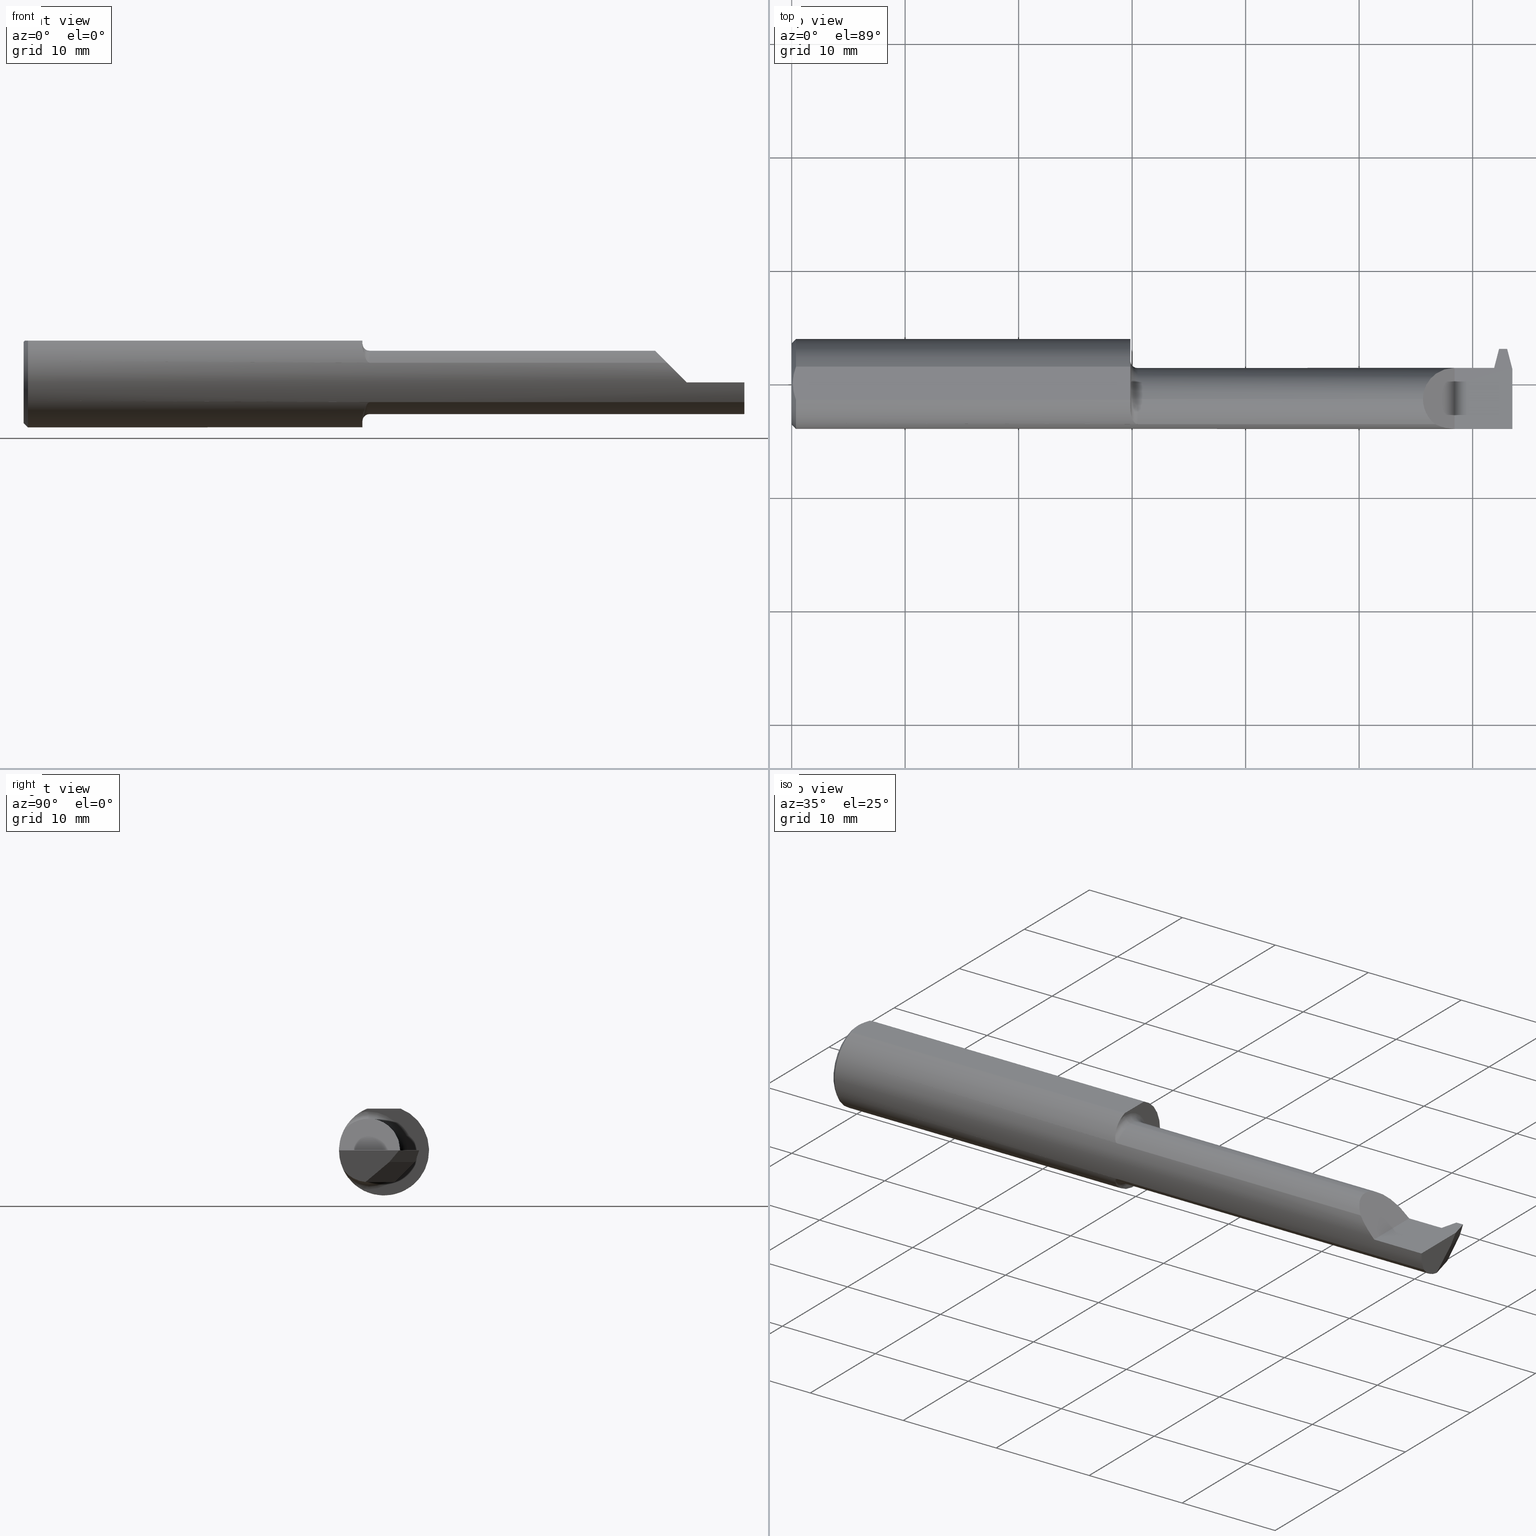
[diagram: canonical four-view strip — front | top / right | iso, engineering-drawing reading convention]
A machine part, canonical four-view strip (front | top / right | iso — engineering-drawing reading convention). The complete STEP part file that produces these views, byte-faithful:
ISO-10303-21;
HEADER;
FILE_DESCRIPTION (( 'STEP AP203' ),
    '1' );
FILE_NAME ('230955-FAT2901250-12.STEP',
    '2024-05-22T18:22:49',
    ( '' ),
    ( '' ),
    'SwSTEP 2.0',
    'SolidWorks 2022',
    '' );
FILE_SCHEMA (( 'CONFIG_CONTROL_DESIGN' ));
ENDSEC;

DATA;
#1 = ORIENTED_EDGE ( 'NONE', *, *, #415, .T. ) ;
#2 = EDGE_CURVE ( 'NONE', #621, #810, #738, .T. ) ;
#3 = EDGE_CURVE ( 'NONE', #616, #659, #133, .T. ) ;
#4 = LINE ( 'NONE', #78, #486 ) ;
#5 = ORIENTED_EDGE ( 'NONE', *, *, #351, .T. ) ;
#6 = CARTESIAN_POINT ( 'NONE',  ( 1.187605359673461258, -0.1337809426577717675, 0.08051774082737322979 ) ) ;
#7 = AXIS2_PLACEMENT_3D ( 'NONE', #19, #520, #598 ) ;
#8 = DIRECTION ( 'NONE',  ( 0.9474803064293673138, -0.2450350680735369768, 0.2055210070593990190 ) ) ;
#9 = ORIENTED_EDGE ( 'NONE', *, *, #587, .F. ) ;
#10 = AXIS2_PLACEMENT_3D ( 'NONE', #38, #619, #751 ) ;
#11 = DIRECTION ( 'NONE',  ( -0.000000000000000000, 0.000000000000000000, 1.000000000000000000 ) ) ;
#12 = CARTESIAN_POINT ( 'NONE',  ( 2.500000000000000000, -0.1404253234750461043, -0.06817579135535321855 ) ) ;
#13 = ORIENTED_EDGE ( 'NONE', *, *, #472, .T. ) ;
#14 = APPROVAL_STATUS ( 'not_yet_approved' ) ;
#15 = DIRECTION ( 'NONE',  ( 0.03504448777032439372, 0.7066724431718361954, 0.7066724431718443000 ) ) ;
#16 = CARTESIAN_POINT ( 'NONE',  ( 2.476885438100391745, 0.1081268954684106998, -0.04000000000000272088 ) ) ;
#17 = EDGE_LOOP ( 'NONE', ( #265, #409, #29, #561 ) ) ;
#18 = EDGE_CURVE ( 'NONE', #59, #519, #278, .T. ) ;
#19 = CARTESIAN_POINT ( 'NONE',  ( 0.000000000000000000, 0.000000000000000000, 0.000000000000000000 ) ) ;
#20 = CIRCLE ( 'NONE', #189, 0.1100000000000000006 ) ;
#21 = DIRECTION ( 'NONE',  ( -0.9474803064293664256, -0.2450350680735401965, 0.2055210070593990468 ) ) ;
#22 = LINE ( 'NONE', #249, #25 ) ;
#23 = APPROVAL_PERSON_ORGANIZATION ( #530, #311, #90 ) ;
#24 = EDGE_LOOP ( 'NONE', ( #332, #547, #79, #259, #296 ) ) ;
#25 = VECTOR ( 'NONE', #601, 39.37007874015748854 ) ;
#26 = VECTOR ( 'NONE', #822, 39.37007874015748854 ) ;
#27 = PLANE ( 'NONE',  #794 ) ;
#28 = CARTESIAN_POINT ( 'NONE',  ( 1.175000000000000266, 0.000000000000000000, 0.000000000000000000 ) ) ;
#29 = ORIENTED_EDGE ( 'NONE', *, *, #31, .T. ) ;
#30 = COORDINATED_UNIVERSAL_TIME_OFFSET ( 8, 0, .BEHIND. ) ;
#31 = EDGE_CURVE ( 'NONE', #35, #602, #421, .T. ) ;
#32 = ADVANCED_FACE ( 'NONE', ( #814 ), #119, .T. ) ;
#33 = CARTESIAN_POINT ( 'NONE',  ( 2.500000000000000000, 0.05756040305626777126, 0.1450999999999999790 ) ) ;
#34 = DIRECTION ( 'NONE',  ( -1.000000000000000000, -0.000000000000000000, -0.000000000000000000 ) ) ;
#35 = VERTEX_POINT ( 'NONE', #54 ) ;
#36 =( LENGTH_UNIT ( ) NAMED_UNIT ( * ) SI_UNIT ( $, .METRE. ) );
#37 = AXIS2_PLACEMENT_3D ( 'NONE', #179, #742, #184 ) ;
#38 = CARTESIAN_POINT ( 'NONE',  ( 2.435000000000000053, -0.05409999999999999531, 0.000000000000000000 ) ) ;
#39 = ORIENTED_EDGE ( 'NONE', *, *, #99, .T. ) ;
#40 = AXIS2_PLACEMENT_3D ( 'NONE', #593, #588, #880 ) ;
#41 = AXIS2_PLACEMENT_3D ( 'NONE', #462, #465, #518 ) ;
#42 = AXIS2_PLACEMENT_3D ( 'NONE', #678, #331, #609 ) ;
#43 = CARTESIAN_POINT ( 'NONE',  ( 2.189999999999999947, -0.08835990389925882371, 0.1100000000000000283 ) ) ;
#44 = EDGE_CURVE ( 'NONE', #418, #193, #49, .T. ) ;
#45 = CARTESIAN_POINT ( 'NONE',  ( 2.433435339008330534, -0.05409999999999999531, 0.000000000000000000 ) ) ;
#46 = EDGE_LOOP ( 'NONE', ( #679, #380, #425, #789 ) ) ;
#47 = DIRECTION ( 'NONE',  ( 0.000000000000000000, -0.7071067811865434649, -0.7071067811865516806 ) ) ;
#48 = DIRECTION ( 'NONE',  ( -0.1200238624775765151, -0.3232146245633320536, -0.9386834284807354933 ) ) ;
#49 = LINE ( 'NONE', #557, #361 ) ;
#50 = VERTEX_POINT ( 'NONE', #222 ) ;
#51 = EDGE_CURVE ( 'NONE', #193, #59, #651, .T. ) ;
#52 = PLANE ( 'NONE',  #622 ) ;
#53 = CARTESIAN_POINT ( 'NONE',  ( 2.457349483508902033, 0.05551813835601964592, -0.1927869246668192094 ) ) ;
#54 = CARTESIAN_POINT ( 'NONE',  ( 2.482000000000000650, 0.1219000000000000361, 0.000000000000000000 ) ) ;
#55 = DATE_TIME_ROLE ( 'classification_date' ) ;
#56 =( GEOMETRIC_REPRESENTATION_CONTEXT ( 3 ) GLOBAL_UNCERTAINTY_ASSIGNED_CONTEXT ( ( #146 ) ) GLOBAL_UNIT_ASSIGNED_CONTEXT ( ( #390, #329, #183 ) ) REPRESENTATION_CONTEXT ( 'NONE', 'WORKASPACE' ) );
#57 = DIRECTION ( 'NONE',  ( 0.2055210070593990190, 0.000000000000000000, 0.9786527043120508695 ) ) ;
#58 = CARTESIAN_POINT ( 'NONE',  ( 2.500000000000000000, -0.03592291248472855025, -0.1100000000000000006 ) ) ;
#59 = VERTEX_POINT ( 'NONE', #142 ) ;
#60 = EDGE_CURVE ( 'NONE', #844, #255, #791, .T. ) ;
#61 = CARTESIAN_POINT ( 'NONE',  ( 1.175000000000000266, 0.000000000000000000, 0.000000000000000000 ) ) ;
#62 = ORIENTED_EDGE ( 'NONE', *, *, #171, .F. ) ;
#63 = CARTESIAN_POINT ( 'NONE',  ( 0.000000000000000000, 0.000000000000000000, 0.000000000000000000 ) ) ;
#64 = DIRECTION ( 'NONE',  ( -1.000000000000000000, -0.000000000000000000, -0.000000000000000000 ) ) ;
#65 = VECTOR ( 'NONE', #461, 39.37007874015748143 ) ;
#66 = ORIENTED_EDGE ( 'NONE', *, *, #60, .F. ) ;
#67 = CARTESIAN_POINT ( 'NONE',  ( 1.175000000000000266, -0.05409999999999999531, 0.000000000000000000 ) ) ;
#68 = DIRECTION ( 'NONE',  ( 0.2503800040544276739, -0.9681476403781111850, 0.000000000000000000 ) ) ;
#69 = EDGE_CURVE ( 'NONE', #89, #659, #378, .T. ) ;
#70 = AXIS2_PLACEMENT_3D ( 'NONE', #904, #279, #408 ) ;
#71 = VERTEX_POINT ( 'NONE', #303 ) ;
#72 = DIRECTION ( 'NONE',  ( 1.000000000000000000, 0.000000000000000000, 0.000000000000000000 ) ) ;
#73 = FACE_OUTER_BOUND ( 'NONE', #24, .T. ) ;
#74 = ORIENTED_EDGE ( 'NONE', *, *, #190, .T. ) ;
#75 = CC_DESIGN_PERSON_AND_ORGANIZATION_ASSIGNMENT ( #405, #815, ( #348 ) ) ;
#76 = EDGE_CURVE ( 'NONE', #304, #767, #781, .T. ) ;
#77 = CARTESIAN_POINT ( 'NONE',  ( 1.189166370965441644, -0.1355737491029500308, 0.07744673639403802656 ) ) ;
#78 = CARTESIAN_POINT ( 'NONE',  ( 1.175000000000000266, 0.05590000000000001218, -3.918740332231607202E-17 ) ) ;
#79 = ORIENTED_EDGE ( 'NONE', *, *, #76, .T. ) ;
#80 = AXIS2_PLACEMENT_3D ( 'NONE', #670, #381, #166 ) ;
#81 = CARTESIAN_POINT ( 'NONE',  ( 0.008847869984959717479, -0.03896939155709343294, 0.1450999999999999512 ) ) ;
#82 = CC_DESIGN_APPROVAL ( #311, ( #370 ) ) ;
#83 = PLANE ( 'NONE',  #863 ) ;
#84 = AXIS2_PLACEMENT_3D ( 'NONE', #704, #149, #769 ) ;
#85 = ORIENTED_EDGE ( 'NONE', *, *, #230, .T. ) ;
#86 = CIRCLE ( 'NONE', #653, 0.1560999999999999888 ) ;
#87 = LINE ( 'NONE', #657, #406 ) ;
#88 = LINE ( 'NONE', #799, #272 ) ;
#89 = VERTEX_POINT ( 'NONE', #137 ) ;
#90 = APPROVAL_ROLE ( '' ) ;
#91 = LINE ( 'NONE', #732, #566 ) ;
#92 = LINE ( 'NONE', #388, #823 ) ;
#93 = ORIENTED_EDGE ( 'NONE', *, *, #2, .T. ) ;
#94 = VECTOR ( 'NONE', #584, 39.37007874015748143 ) ;
#95 = PLANE ( 'NONE',  #267 ) ;
#96 = CARTESIAN_POINT ( 'NONE',  ( 0.003999999999997044114, 0.009886684785571414960, 0.1450999999999999512 ) ) ;
#97 = AXIS2_PLACEMENT_3D ( 'NONE', #660, #467, #526 ) ;
#98 = EDGE_CURVE ( 'NONE', #828, #418, #212, .T. ) ;
#99 = EDGE_CURVE ( 'NONE', #621, #911, #298, .T. ) ;
#100 = VERTEX_POINT ( 'NONE', #638 ) ;
#101 = DATE_AND_TIME ( #174, #145 ) ;
#102 = VECTOR ( 'NONE', #499, 39.37007874015748143 ) ;
#103 = DIRECTION ( 'NONE',  ( 0.000000000000000000, 0.000000000000000000, -1.000000000000000000 ) ) ;
#104 = CARTESIAN_POINT ( 'NONE',  ( 1.189206631919842438, -0.1356135290907077295, -0.07737645377574924044 ) ) ;
#105 = ORIENTED_EDGE ( 'NONE', *, *, #373, .F. ) ;
#106 = PLANE ( 'NONE',  #314 ) ;
#107 = LINE ( 'NONE', #804, #913 ) ;
#108 = ORIENTED_EDGE ( 'NONE', *, *, #672, .T. ) ;
#109 = APPROVAL_ROLE ( '' ) ;
#110 = EDGE_CURVE ( 'NONE', #193, #906, #914, .T. ) ;
#111 = DIRECTION ( 'NONE',  ( -0.1200238624775773616, 0.3232146245633324977, 0.9386834284807352713 ) ) ;
#112 = VECTOR ( 'NONE', #15, 39.37007874015748143 ) ;
#113 = DIRECTION ( 'NONE',  ( 1.000000000000000000, -0.000000000000000000, -0.000000000000000000 ) ) ;
#114 = DIRECTION ( 'NONE',  ( 0.000000000000000000, -1.785014314041990160E-15, -1.000000000000000000 ) ) ;
#115 = COORDINATED_UNIVERSAL_TIME_OFFSET ( 8, 0, .BEHIND. ) ;
#116 = DIRECTION ( 'NONE',  ( -0.000000000000000000, 0.000000000000000000, -1.000000000000000000 ) ) ;
#117 = AXIS2_PLACEMENT_3D ( 'NONE', #258, #301, #647 ) ;
#118 = B_SPLINE_CURVE_WITH_KNOTS ( 'NONE', 3,
 ( #214, #780, #912, #374, #514, #77, #6, #283, #288, #503, #643, #851, #784, #632 ),
 .UNSPECIFIED., .F., .F.,
 ( 4, 2, 2, 2, 2, 2, 4 ),
 ( 0.000000000000000000, 0.0001496528642217798968, 0.0002993057284435597936, 0.0005986114568871139493, 0.001197222913774225513, 0.001795834370661337186, 0.002394445827548448424 ),
 .UNSPECIFIED. ) ;
#119 = PLANE ( 'NONE',  #238 ) ;
#120 = ADVANCED_FACE ( 'NONE', ( #445 ), #453, .T. ) ;
#121 = SHAPE_DEFINITION_REPRESENTATION ( #285, #909 ) ;
#122 = ORIENTED_EDGE ( 'NONE', *, *, #343, .T. ) ;
#123 = CARTESIAN_POINT ( 'NONE',  ( 2.477415328209377154, 0.05884440122159074332, -0.1831267558706183574 ) ) ;
#124 = DIRECTION ( 'NONE',  ( -0.9786527043120508695, 0.000000000000000000, 0.2055210070593990190 ) ) ;
#125 = EDGE_LOOP ( 'NONE', ( #714, #440, #455, #825 ) ) ;
#126 = DATE_AND_TIME ( #617, #131 ) ;
#127 = ORIENTED_EDGE ( 'NONE', *, *, #772, .F. ) ;
#128 = CARTESIAN_POINT ( 'NONE',  ( 2.500000000000000000, -0.05410000000000000919, -0.1100000000000000006 ) ) ;
#129 = APPLICATION_CONTEXT ( 'configuration controlled 3d designs of mechanical parts and assemblies' ) ;
#130 = ORIENTED_EDGE ( 'NONE', *, *, #190, .F. ) ;
#131 = LOCAL_TIME ( 11, 22, 49.00000000000000000, #895 ) ;
#132 = LINE ( 'NONE', #544, #335 ) ;
#133 = CIRCLE ( 'NONE', #834, 0.02499999999999999098 ) ;
#134 = DIRECTION ( 'NONE',  ( 0.2503800040544402195, -0.9681476403781079654, 0.000000000000000000 ) ) ;
#135 = ORIENTED_EDGE ( 'NONE', *, *, #98, .F. ) ;
#136 = CARTESIAN_POINT ( 'NONE',  ( 2.300000000000000266, -0.1560999999999999888, -3.918740332231607202E-17 ) ) ;
#137 = CARTESIAN_POINT ( 'NONE',  ( 1.175000000000000266, -0.08381719038816995426, 0.1316886046529207599 ) ) ;
#138 = EDGE_LOOP ( 'NONE', ( #360, #489, #770, #916 ) ) ;
#139 = EDGE_CURVE ( 'NONE', #828, #144, #777, .T. ) ;
#140 = EDGE_CURVE ( 'NONE', #100, #144, #358, .T. ) ;
#141 = CARTESIAN_POINT ( 'NONE',  ( 2.453999999999999737, 0.1219000000000001055, 0.000000000000000000 ) ) ;
#142 = CARTESIAN_POINT ( 'NONE',  ( 2.443435339008330320, -0.03592291248472852250, -0.1099999999999999867 ) ) ;
#143 = VECTOR ( 'NONE', #111, 39.37007874015748143 ) ;
#144 = VERTEX_POINT ( 'NONE', #713 ) ;
#145 = LOCAL_TIME ( 11, 22, 49.00000000000000000, #30 ) ;
#146 = UNCERTAINTY_MEASURE_WITH_UNIT (LENGTH_MEASURE( 1.000000000000000082E-05 ), #390, 'distance_accuracy_value', 'NONE');
#147 = DIRECTION ( 'NONE',  ( 0.000000000000000000, 0.000000000000000000, -1.000000000000000000 ) ) ;
#148 = VECTOR ( 'NONE', #154, 39.37007874015748143 ) ;
#149 = DIRECTION ( 'NONE',  ( -1.000000000000000000, -0.000000000000000000, -0.000000000000000000 ) ) ;
#150 = CIRCLE ( 'NONE', #708, 0.1560999999999999888 ) ;
#151 = ADVANCED_FACE ( 'NONE', ( #218 ), #83, .F. ) ;
#152 = EDGE_LOOP ( 'NONE', ( #597, #198 ) ) ;
#153 = DIRECTION ( 'NONE',  ( 0.000000000000000000, 0.000000000000000000, -1.000000000000000000 ) ) ;
#154 = DIRECTION ( 'NONE',  ( 1.000000000000000000, 0.000000000000000000, 0.000000000000000000 ) ) ;
#155 = ORIENTED_EDGE ( 'NONE', *, *, #260, .F. ) ;
#156 = DIRECTION ( 'NONE',  ( 0.000000000000000000, 0.000000000000000000, -1.000000000000000000 ) ) ;
#157 = DIRECTION ( 'NONE',  ( -0.2945363905204563260, 0.000000000000000000, -0.9556402642517638490 ) ) ;
#158 = ORIENTED_EDGE ( 'NONE', *, *, #628, .T. ) ;
#159 = AXIS2_PLACEMENT_3D ( 'NONE', #543, #677, #555 ) ;
#160 = ADVANCED_FACE ( 'NONE', ( #648 ), #579, .T. ) ;
#161 = CARTESIAN_POINT ( 'NONE',  ( 2.478772211757619193, 0.1461737049639192376, -0.001953190504493762785 ) ) ;
#162 = CARTESIAN_POINT ( 'NONE',  ( 1.176534083241760564, -0.1085804411166635258, -0.1131817073037791888 ) ) ;
#163 = AXIS2_PLACEMENT_3D ( 'NONE', #551, #124, #57 ) ;
#164 = ORIENTED_EDGE ( 'NONE', *, *, #273, .T. ) ;
#165 = AXIS2_PLACEMENT_3D ( 'NONE', #63, #833, #153 ) ;
#166 = DIRECTION ( 'NONE',  ( 0.000000000000000000, 0.000000000000000000, 1.000000000000000000 ) ) ;
#167 = CARTESIAN_POINT ( 'NONE',  ( 0.005042865002153306721, -0.01979865541750971611, 0.1451000000000000068 ) ) ;
#168 = DIRECTION ( 'NONE',  ( 0.7071067811865483499, 0.000000000000000000, -0.7071067811865466846 ) ) ;
#169 = ORIENTED_EDGE ( 'NONE', *, *, #228, .T. ) ;
#170 = CARTESIAN_POINT ( 'NONE',  ( 1.175000000000000266, -0.05409999999999997450, 0.1350000000000000089 ) ) ;
#171 = EDGE_CURVE ( 'NONE', #307, #100, #4, .T. ) ;
#172 = CARTESIAN_POINT ( 'NONE',  ( 0.01499999999999970281, 0.000000000000000000, -0.1560999999999999888 ) ) ;
#173 = ORIENTED_EDGE ( 'NONE', *, *, #44, .F. ) ;
#174 = CALENDAR_DATE ( 2024, 22, 5 ) ;
#175 = LINE ( 'NONE', #527, #595 ) ;
#176 = CARTESIAN_POINT ( 'NONE',  ( 2.433435339008330534, 0.04749983899686319871, -0.04000000000000271394 ) ) ;
#177 = ORIENTED_EDGE ( 'NONE', *, *, #512, .F. ) ;
#178 = CC_DESIGN_DATE_AND_TIME_ASSIGNMENT ( #426, #55, ( #627 ) ) ;
#179 = CARTESIAN_POINT ( 'NONE',  ( 1.175000000000000266, -0.05409999999999999531, 0.000000000000000000 ) ) ;
#180 = APPROVAL_PERSON_ORGANIZATION ( #264, #633, #109 ) ;
#181 = CARTESIAN_POINT ( 'NONE',  ( 1.198017170444488855, -0.1404253234750461043, -0.06817579135535316304 ) ) ;
#182 = VERTEX_POINT ( 'NONE', #852 ) ;
#183 =( NAMED_UNIT ( * ) SI_UNIT ( $, .STERADIAN. ) SOLID_ANGLE_UNIT ( ) );
#184 = DIRECTION ( 'NONE',  ( 0.000000000000000000, 0.000000000000000000, -1.000000000000000000 ) ) ;
#185 = CARTESIAN_POINT ( 'NONE',  ( 2.204937869678032847, -0.1191917229287704216, 0.09506213032196700330 ) ) ;
#186 = DIRECTION ( 'NONE',  ( 0.000000000000000000, 0.000000000000000000, -1.000000000000000000 ) ) ;
#187 = PERSON_AND_ORGANIZATION ( #476, #717 ) ;
#188 = PLANE ( 'NONE',  #454 ) ;
#189 = AXIS2_PLACEMENT_3D ( 'NONE', #536, #522, #156 ) ;
#190 = EDGE_CURVE ( 'NONE', #763, #616, #840, .T. ) ;
#191 = FACE_OUTER_BOUND ( 'NONE', #313, .T. ) ;
#192 = MANIFOLD_SOLID_BREP ( 'Cut-Sweep1', #221 ) ;
#193 = VERTEX_POINT ( 'NONE', #773 ) ;
#194 = ORIENTED_EDGE ( 'NONE', *, *, #140, .T. ) ;
#195 = DIRECTION ( 'NONE',  ( -1.000000000000000000, -0.000000000000000000, -0.000000000000000000 ) ) ;
#196 = CIRCLE ( 'NONE', #42, 0.1350000000000000089 ) ;
#197 = FACE_OUTER_BOUND ( 'NONE', #125, .T. ) ;
#198 = ORIENTED_EDGE ( 'NONE', *, *, #606, .F. ) ;
#199 = ORIENTED_EDGE ( 'NONE', *, *, #18, .T. ) ;
#200 = DIRECTION ( 'NONE',  ( 0.000000000000000000, 0.000000000000000000, -1.000000000000000000 ) ) ;
#201 = DIRECTION ( 'NONE',  ( 1.000000000000000000, 0.000000000000000000, 0.000000000000000000 ) ) ;
#202 = ADVANCED_FACE ( 'NONE', ( #73 ), #577, .T. ) ;
#203 = EDGE_CURVE ( 'NONE', #868, #844, #655, .T. ) ;
#204 = ORIENTED_EDGE ( 'NONE', *, *, #228, .F. ) ;
#205 = LINE ( 'NONE', #268, #611 ) ;
#206 = ORIENTED_EDGE ( 'NONE', *, *, #333, .F. ) ;
#207 = PRODUCT ( '230955-FAT2901250-12', '230955-FAT2901250-12', '', ( #252 ) ) ;
#208 = ORIENTED_EDGE ( 'NONE', *, *, #576, .F. ) ;
#209 = VECTOR ( 'NONE', #700, 39.37007874015748143 ) ;
#210 = CARTESIAN_POINT ( 'NONE',  ( 2.500000000000000000, 0.05229916429182325521, 0.000000000000000000 ) ) ;
#211 = VECTOR ( 'NONE', #220, 39.37007874015748854 ) ;
#212 = LINE ( 'NONE', #581, #302 ) ;
#213 = EDGE_CURVE ( 'NONE', #271, #592, #835, .T. ) ;
#214 = CARTESIAN_POINT ( 'NONE',  ( 1.200000000000000178, -0.1404253234750461321, 0.06817579135535316304 ) ) ;
#215 = CARTESIAN_POINT ( 'NONE',  ( 2.468000000000000416, 0.1424843353251063760, -0.04000000000000271394 ) ) ;
#216 = ORIENTED_EDGE ( 'NONE', *, *, #51, .F. ) ;
#217 = CARTESIAN_POINT ( 'NONE',  ( 2.500000000000000000, -0.06412741814737710211, -0.1095420051181173471 ) ) ;
#218 = FACE_OUTER_BOUND ( 'NONE', #620, .T. ) ;
#219 = ORIENTED_EDGE ( 'NONE', *, *, #243, .F. ) ;
#220 = DIRECTION ( 'NONE',  ( 0.000000000000000000, -0.6426264403010609749, -0.7661796514042817918 ) ) ;
#221 = CLOSED_SHELL ( 'NONE', ( #829, #433, #473, #444, #521, #876, #716, #120, #897, #151, #639, #312, #782, #910, #875, #664, #532, #845, #160, #32, #383, #359, #342, #202, #698, #300, #856 ) ) ;
#222 = CARTESIAN_POINT ( 'NONE',  ( 2.500000000000000000, -0.1561000000000000165, -3.918740332231607202E-17 ) ) ;
#223 = ORIENTED_EDGE ( 'NONE', *, *, #423, .T. ) ;
#224 = APPLICATION_CONTEXT ( 'configuration controlled 3d designs of mechanical parts and assemblies' ) ;
#225 = DIMENSIONAL_EXPONENTS ( 1.000000000000000000, 0.000000000000000000, 0.000000000000000000, 0.000000000000000000, 0.000000000000000000, 0.000000000000000000, 0.000000000000000000 ) ;
#226 = B_SPLINE_CURVE_WITH_KNOTS ( 'NONE', 3,
 ( #730, #788, #162, #596, #796, #662, #104, #392, #310, #867, #181, #528 ),
 .UNSPECIFIED., .F., .F.,
 ( 4, 2, 2, 2, 2, 4 ),
 ( 0.000000000000000000, 0.001172760684278181115, 0.001759141026417271672, 0.002052331197486818685, 0.002198926283021592626, 0.002345521368556367000 ),
 .UNSPECIFIED. ) ;
#227 = FACE_OUTER_BOUND ( 'NONE', #831, .T. ) ;
#228 = EDGE_CURVE ( 'NONE', #841, #682, #695, .T. ) ;
#229 = CARTESIAN_POINT ( 'NONE',  ( 1.175000000000000266, -0.05409999999999999531, 0.1100000000000000006 ) ) ;
#230 = EDGE_CURVE ( 'NONE', #385, #592, #226, .T. ) ;
#231 = VERTEX_POINT ( 'NONE', #327 ) ;
#232 = DIRECTION ( 'NONE',  ( -0.2945363905204600452, 0.000000000000000000, 0.9556402642517627388 ) ) ;
#233 = CARTESIAN_POINT ( 'NONE',  ( 0.003999999999999595893, 1.377970445471898428E-17, 0.1450999999999999790 ) ) ;
#234 = VERTEX_POINT ( 'NONE', #323 ) ;
#235 = PERSON_AND_ORGANIZATION_ROLE ( 'creator' ) ;
#236 = CARTESIAN_POINT ( 'NONE',  ( 2.425128570000000927, 0.1081268954684135863, -0.03999999999999984818 ) ) ;
#237 = CARTESIAN_POINT ( 'NONE',  ( 1.175000000000000266, 0.05756040305626777126, 0.1450999999999999790 ) ) ;
#238 = AXIS2_PLACEMENT_3D ( 'NONE', #349, #690, #186 ) ;
#239 = ORIENTED_EDGE ( 'NONE', *, *, #343, .F. ) ;
#240 = CIRCLE ( 'NONE', #165, 0.1411000000000003085 ) ;
#241 = FACE_OUTER_BOUND ( 'NONE', #338, .T. ) ;
#242 = EDGE_CURVE ( 'NONE', #50, #602, #88, .T. ) ;
#243 = EDGE_CURVE ( 'NONE', #71, #255, #459, .T. ) ;
#244 = CARTESIAN_POINT ( 'NONE',  ( 2.433435339008330534, 0.04660744544460401068, -0.04424941165735549187 ) ) ;
#245 = DIRECTION ( 'NONE',  ( -0.000000000000000000, 1.000000000000000000, -0.000000000000000000 ) ) ;
#246 = ORIENTED_EDGE ( 'NONE', *, *, #736, .T. ) ;
#247 = DIRECTION ( 'NONE',  ( -1.000000000000000000, 0.000000000000000000, 0.000000000000000000 ) ) ;
#248 = CARTESIAN_POINT ( 'NONE',  ( 1.175000000000000266, -0.03363394074619011076, -0.1080793246584172002 ) ) ;
#249 = CARTESIAN_POINT ( 'NONE',  ( 2.500000000000000000, 0.01874951628834128567, -0.04000000000000271394 ) ) ;
#250 = EDGE_CURVE ( 'NONE', #271, #516, #882, .T. ) ;
#251 = VERTEX_POINT ( 'NONE', #604 ) ;
#252 = MECHANICAL_CONTEXT ( 'NONE', #224, 'mechanical' ) ;
#253 = DIRECTION ( 'NONE',  ( -1.000000000000000000, 0.000000000000000000, -0.000000000000000000 ) ) ;
#254 = LINE ( 'NONE', #724, #441 ) ;
#255 = VERTEX_POINT ( 'NONE', #878 ) ;
#256 = VECTOR ( 'NONE', #48, 39.37007874015748143 ) ;
#257 = CARTESIAN_POINT ( 'NONE',  ( 1.175000000000000266, -0.05756040305626777820, 0.1450999999999999790 ) ) ;
#258 = CARTESIAN_POINT ( 'NONE',  ( 0.01499999999999970281, 0.000000000000000000, 0.000000000000000000 ) ) ;
#259 = ORIENTED_EDGE ( 'NONE', *, *, #274, .T. ) ;
#260 = EDGE_CURVE ( 'NONE', #231, #519, #92, .T. ) ;
#261 = FACE_OUTER_BOUND ( 'NONE', #631, .T. ) ;
#262 = DIRECTION ( 'NONE',  ( -0.000000000000000000, 1.000000000000000000, -1.035685753785427298E-16 ) ) ;
#263 = ORIENTED_EDGE ( 'NONE', *, *, #560, .T. ) ;
#264 = PERSON_AND_ORGANIZATION ( #476, #717 ) ;
#265 = ORIENTED_EDGE ( 'NONE', *, *, #76, .F. ) ;
#266 = LINE ( 'NONE', #608, #702 ) ;
#267 = AXIS2_PLACEMENT_3D ( 'NONE', #391, #322, #666 ) ;
#268 = CARTESIAN_POINT ( 'NONE',  ( 2.500000000000000000, -0.1560999999999999888, -3.918740332231607202E-17 ) ) ;
#269 = ORIENTED_EDGE ( 'NONE', *, *, #451, .T. ) ;
#270 = APPROVAL_STATUS ( 'not_yet_approved' ) ;
#271 = VERTEX_POINT ( 'NONE', #12 ) ;
#272 = VECTOR ( 'NONE', #245, 39.37007874015748143 ) ;
#273 = EDGE_CURVE ( 'NONE', #144, #607, #254, .T. ) ;
#274 = EDGE_CURVE ( 'NONE', #767, #516, #22, .T. ) ;
#275 = CARTESIAN_POINT ( 'NONE',  ( 2.500000000000000000, -0.06412741814737710211, -0.1095420051181173471 ) ) ;
#276 = LINE ( 'NONE', #128, #320 ) ;
#277 = CC_DESIGN_APPROVAL ( #570, ( #348 ) ) ;
#278 = LINE ( 'NONE', #58, #102 ) ;
#279 = DIRECTION ( 'NONE',  ( -1.000000000000000000, -0.000000000000000000, -0.000000000000000000 ) ) ;
#280 = ORIENTED_EDGE ( 'NONE', *, *, #757, .F. ) ;
#281 = EDGE_CURVE ( 'NONE', #385, #319, #86, .T. ) ;
#282 = CALENDAR_DATE ( 2024, 22, 5 ) ;
#283 = CARTESIAN_POINT ( 'NONE',  ( 1.183416808568586331, -0.1279360967279930261, 0.08973580099040204261 ) ) ;
#284 = CARTESIAN_POINT ( 'NONE',  ( 2.500000000000000000, -0.05756040305626777126, 0.1450999999999999790 ) ) ;
#285 = PRODUCT_DEFINITION_SHAPE ( 'NONE', 'NONE',  #370 ) ;
#286 = ORIENTED_EDGE ( 'NONE', *, *, #747, .F. ) ;
#287 = AXIS2_PLACEMENT_3D ( 'NONE', #45, #685, #114 ) ;
#288 = CARTESIAN_POINT ( 'NONE',  ( 1.181414747612839378, -0.1234875550582431036, 0.09578598333246281238 ) ) ;
#289 = AXIS2_PLACEMENT_3D ( 'NONE', #61, #355, #907 ) ;
#290 = CARTESIAN_POINT ( 'NONE',  ( 0.01499999999999970281, 0.000000000000000000, 0.000000000000000000 ) ) ;
#291 = ORIENTED_EDGE ( 'NONE', *, *, #60, .T. ) ;
#292 = EDGE_CURVE ( 'NONE', #234, #906, #107, .T. ) ;
#293 = DESIGN_CONTEXT ( 'detailed design', #129, 'design' ) ;
#294 = DIRECTION ( 'NONE',  ( 1.000000000000000000, 0.000000000000000000, 0.000000000000000000 ) ) ;
#295 = DIRECTION ( 'NONE',  ( 0.2503800040544369443, 0.9681476403781090756, 0.000000000000000000 ) ) ;
#296 = ORIENTED_EDGE ( 'NONE', *, *, #792, .F. ) ;
#297 = DIRECTION ( 'NONE',  ( 0.000000000000000000, 0.000000000000000000, 1.000000000000000000 ) ) ;
#298 = LINE ( 'NONE', #434, #209 ) ;
#299 = VERTEX_POINT ( 'NONE', #176 ) ;
#300 = ADVANCED_FACE ( 'NONE', ( #384 ), #537, .T. ) ;
#301 = DIRECTION ( 'NONE',  ( 1.000000000000000000, -0.000000000000000000, -0.000000000000000000 ) ) ;
#302 = VECTOR ( 'NONE', #365, 39.37007874015748854 ) ;
#303 = CARTESIAN_POINT ( 'NONE',  ( 0.000000000000000000, 0.000000000000000000, -0.1411000000000003085 ) ) ;
#304 = VERTEX_POINT ( 'NONE', #16 ) ;
#305 = LINE ( 'NONE', #661, #94 ) ;
#306 = CARTESIAN_POINT ( 'NONE',  ( 1.804999999999999938, -0.1404253234750461321, -0.06817579135535316304 ) ) ;
#307 = VERTEX_POINT ( 'NONE', #739 ) ;
#308 = CARTESIAN_POINT ( 'NONE',  ( 2.500000000000000000, 0.1107574376735033922, -0.1100000000000000283 ) ) ;
#309 = LINE ( 'NONE', #248, #438 ) ;
#310 = CARTESIAN_POINT ( 'NONE',  ( 1.193429166325216562, -0.1387203257045916682, -0.07159402063229233781 ) ) ;
#311 = APPROVAL ( #14, 'UNSPECIFIED' ) ;
#312 = ADVANCED_FACE ( 'NONE', ( #403 ), #590, .F. ) ;
#313 = EDGE_LOOP ( 'NONE', ( #5, #656, #805, #665 ) ) ;
#314 = AXIS2_PLACEMENT_3D ( 'NONE', #891, #413, #200 ) ;
#315 = PERSON_AND_ORGANIZATION ( #476, #717 ) ;
#316 = FACE_OUTER_BOUND ( 'NONE', #435, .T. ) ;
#317 = CARTESIAN_POINT ( 'NONE',  ( 0.008799784310863792772, 0.03878477980766483618, 0.1451000000000000068 ) ) ;
#318 = VECTOR ( 'NONE', #34, 39.37007874015748143 ) ;
#319 = VERTEX_POINT ( 'NONE', #237 ) ;
#320 = VECTOR ( 'NONE', #827, 39.37007874015748143 ) ;
#321 = CYLINDRICAL_SURFACE ( 'NONE', #80, 0.1560999999999999888 ) ;
#322 = DIRECTION ( 'NONE',  ( -0.000000000000000000, 0.000000000000000000, -1.000000000000000000 ) ) ;
#323 = CARTESIAN_POINT ( 'NONE',  ( 2.497265575455495323, -0.05410000000000000919, -0.1100000000000000006 ) ) ;
#324 = ORIENTED_EDGE ( 'NONE', *, *, #281, .F. ) ;
#325 = APPROVAL_DATE_TIME ( #101, #311 ) ;
#326 = CARTESIAN_POINT ( 'NONE',  ( 1.200000000000000178, -0.05409999999999999531, 0.1100000000000000006 ) ) ;
#327 = CARTESIAN_POINT ( 'NONE',  ( 2.435000000000000053, -0.03363394074619008300, -0.1080793246584171863 ) ) ;
#328 = ORIENTED_EDGE ( 'NONE', *, *, #260, .T. ) ;
#329 =( NAMED_UNIT ( * ) PLANE_ANGLE_UNIT ( ) SI_UNIT ( $, .RADIAN. ) );
#330 = CARTESIAN_POINT ( 'NONE',  ( 2.399999999999999911, 0.1481268954684129557, 0.000000000000000000 ) ) ;
#331 = DIRECTION ( 'NONE',  ( -1.000000000000000000, -0.000000000000000000, -0.000000000000000000 ) ) ;
#332 = ORIENTED_EDGE ( 'NONE', *, *, #292, .T. ) ;
#333 = EDGE_CURVE ( 'NONE', #616, #182, #350, .T. ) ;
#334 = AXIS2_PLACEMENT_3D ( 'NONE', #439, #64, #719 ) ;
#335 = VECTOR ( 'NONE', #414, 39.37007874015748143 ) ;
#336 = LINE ( 'NONE', #614, #548 ) ;
#337 = DIRECTION ( 'NONE',  ( 1.000000000000000000, 0.000000000000000000, 0.000000000000000000 ) ) ;
#338 = EDGE_LOOP ( 'NONE', ( #697, #905, #879, #431, #280, #353, #9, #345, #291, #893, #574, #324, #85 ) ) ;
#339 = CARTESIAN_POINT ( 'NONE',  ( 2.300000000000000266, 0.05590000000000006075, -3.918740332231607202E-17 ) ) ;
#340 = PLANE ( 'NONE',  #752 ) ;
#341 = DIRECTION ( 'NONE',  ( 0.03504448777032491413, -0.7066724431718361954, -0.7066724431718443000 ) ) ;
#342 = ADVANCED_FACE ( 'NONE', ( #615 ), #624, .F. ) ;
#343 = EDGE_CURVE ( 'NONE', #231, #251, #428, .T. ) ;
#344 = APPROVAL_STATUS ( 'not_yet_approved' ) ;
#345 = ORIENTED_EDGE ( 'NONE', *, *, #203, .T. ) ;
#346 = CARTESIAN_POINT ( 'NONE',  ( 0.000000000000000000, 1.819825143532968629E-17, 0.1411000000000003085 ) ) ;
#347 = DIRECTION ( 'NONE',  ( 0.000000000000000000, -0.3255681544571570885, -0.9455185755993166241 ) ) ;
#348 = PRODUCT_DEFINITION_FORMATION_WITH_SPECIFIED_SOURCE ( 'ANY', '', #207, .NOT_KNOWN. ) ;
#349 = CARTESIAN_POINT ( 'NONE',  ( 1.175000000000000266, 0.2559000000000000163, 0.000000000000000000 ) ) ;
#350 = CIRCLE ( 'NONE', #849, 0.1100000000000000006 ) ;
#351 = EDGE_CURVE ( 'NONE', #35, #304, #498, .T. ) ;
#352 = FACE_OUTER_BOUND ( 'NONE', #754, .T. ) ;
#353 = ORIENTED_EDGE ( 'NONE', *, *, #576, .T. ) ;
#354 = ORIENTED_EDGE ( 'NONE', *, *, #451, .F. ) ;
#355 = DIRECTION ( 'NONE',  ( 1.000000000000000000, 0.000000000000000000, 0.000000000000000000 ) ) ;
#356 = ORIENTED_EDGE ( 'NONE', *, *, #747, .T. ) ;
#357 = CARTESIAN_POINT ( 'NONE',  ( 1.200000000000000178, -0.1404253234750461321, -0.06817579135535316304 ) ) ;
#358 = LINE ( 'NONE', #375, #553 ) ;
#359 = ADVANCED_FACE ( 'NONE', ( #191 ), #340, .F. ) ;
#360 = ORIENTED_EDGE ( 'NONE', *, *, #3, .F. ) ;
#361 = VECTOR ( 'NONE', #341, 39.37007874015748143 ) ;
#362 =( BOUNDED_CURVE ( )  B_SPLINE_CURVE ( 3, ( #136, #839, #768, #636 ),
 .UNSPECIFIED., .F., .T. ) 
 B_SPLINE_CURVE_WITH_KNOTS ( ( 4, 4 ),
 ( 4.712388980384687898, 5.164365393897303314 ),
 .UNSPECIFIED. ) 
 CURVE ( )  GEOMETRIC_REPRESENTATION_ITEM ( )  RATIONAL_B_SPLINE_CURVE ( ( 1.000000000000000000, 0.9830487706143840043, 0.9830487706143840043, 1.000000000000000000 ) ) 
 REPRESENTATION_ITEM ( '' )  );
#363 = CARTESIAN_POINT ( 'NONE',  ( 2.433435339008330534, 0.04749983899686319871, -0.04000000000000271394 ) ) ;
#364 = AXIS2_PLACEMENT_3D ( 'NONE', #892, #337, #541 ) ;
#365 = DIRECTION ( 'NONE',  ( 0.2503800040544308381, 0.9681476403781105189, 0.000000000000000000 ) ) ;
#366 = CC_DESIGN_APPROVAL ( #633, ( #627 ) ) ;
#367 = ORIENTED_EDGE ( 'NONE', *, *, #242, .F. ) ;
#368 = CARTESIAN_POINT ( 'NONE',  ( 2.500000000000000000, 0.000000000000000000, 0.000000000000000000 ) ) ;
#369 = CARTESIAN_POINT ( 'NONE',  ( 2.459689586855829280, 0.1438999999999999724, 0.000000000000000000 ) ) ;
#370 = PRODUCT_DEFINITION ( 'UNKNOWN', '', #348, #293 ) ;
#371 = ORIENTED_EDGE ( 'NONE', *, *, #484, .T. ) ;
#372 = EDGE_CURVE ( 'NONE', #255, #841, #150, .T. ) ;
#373 = EDGE_CURVE ( 'NONE', #50, #586, #205, .T. ) ;
#374 = CARTESIAN_POINT ( 'NONE',  ( 1.193392435750743052, -0.1386997847853259636, 0.07163397791871661813 ) ) ;
#375 = CARTESIAN_POINT ( 'NONE',  ( 2.436931239432511553, 0.05590000000000006075, 0.000000000000000000 ) ) ;
#376 = ORIENTED_EDGE ( 'NONE', *, *, #69, .T. ) ;
#377 = CARTESIAN_POINT ( 'NONE',  ( 0.01499999999999970107, -0.05756040305626777126, 0.1450999999999999790 ) ) ;
#378 = CIRCLE ( 'NONE', #84, 0.1350000000000000089 ) ;
#379 = CARTESIAN_POINT ( 'NONE',  ( 2.482537408317583072, 0.1152735709510031570, -0.1100000000000000283 ) ) ;
#380 = ORIENTED_EDGE ( 'NONE', *, *, #838, .F. ) ;
#381 = DIRECTION ( 'NONE',  ( -1.000000000000000000, -0.000000000000000000, -0.000000000000000000 ) ) ;
#382 = DIRECTION ( 'NONE',  ( -0.9277270166603278634, 0.2399265199903799495, -0.2859332921571629549 ) ) ;
#383 = ADVANCED_FACE ( 'NONE', ( #197 ), #900, .F. ) ;
#384 = FACE_OUTER_BOUND ( 'NONE', #774, .T. ) ;
#385 = VERTEX_POINT ( 'NONE', #495 ) ;
#386 = COORDINATED_UNIVERSAL_TIME_OFFSET ( 8, 0, .BEHIND. ) ;
#387 = CARTESIAN_POINT ( 'NONE',  ( 2.476310413144170663, 0.1438999999999999724, 0.000000000000000000 ) ) ;
#388 = CARTESIAN_POINT ( 'NONE',  ( 2.435000000000000053, 0.07212541088382887211, -0.01933669171212030330 ) ) ;
#389 = ORIENTED_EDGE ( 'NONE', *, *, #3, .T. ) ;
#390 =( CONVERSION_BASED_UNIT ( 'INCH', #873 ) LENGTH_UNIT ( ) NAMED_UNIT ( #225 ) );
#391 = CARTESIAN_POINT ( 'NONE',  ( 2.300000000000000266, 0.1650000000000000078, -3.918740332231607202E-17 ) ) ;
#392 = CARTESIAN_POINT ( 'NONE',  ( 1.192279478956144612, -0.1379798729808596192, -0.07301711011826306219 ) ) ;
#393 = VECTOR ( 'NONE', #134, 39.37007874015748854 ) ;
#394 = ORIENTED_EDGE ( 'NONE', *, *, #772, .T. ) ;
#395 = AXIS2_PLACEMENT_3D ( 'NONE', #712, #506, #567 ) ;
#396 = APPLICATION_PROTOCOL_DEFINITION ( 'international standard', 'config_control_design', 1994, #224 ) ;
#397 = CARTESIAN_POINT ( 'NONE',  ( 2.443435339008330320, 0.04749983899686319871, -0.04000000000000271394 ) ) ;
#398 = CARTESIAN_POINT ( 'NONE',  ( 0.005017455651907636906, 0.01961184984831247299, 0.1450999999999999790 ) ) ;
#399 = ORIENTED_EDGE ( 'NONE', *, *, #715, .F. ) ;
#400 = PLANE ( 'NONE',  #97 ) ;
#401 = EDGE_CURVE ( 'NONE', #299, #810, #556, .T. ) ;
#402 = CARTESIAN_POINT ( 'NONE',  ( 2.499043608181370502, -0.06079307700223159777, -0.1098472289714905736 ) ) ;
#403 = FACE_OUTER_BOUND ( 'NONE', #612, .T. ) ;
#404 = ORIENTED_EDGE ( 'NONE', *, *, #599, .F. ) ;
#405 = PERSON_AND_ORGANIZATION ( #476, #717 ) ;
#406 = VECTOR ( 'NONE', #885, 39.37007874015748143 ) ;
#407 = CARTESIAN_POINT ( 'NONE',  ( 2.235563491861040308, 0.05590000000000019259, 0.06443650813895937524 ) ) ;
#408 = DIRECTION ( 'NONE',  ( 0.000000000000000000, 0.000000000000000000, 1.000000000000000000 ) ) ;
#409 = ORIENTED_EDGE ( 'NONE', *, *, #351, .F. ) ;
#410 = VECTOR ( 'NONE', #168, 39.37007874015748143 ) ;
#411 = SECURITY_CLASSIFICATION_LEVEL ( 'unclassified' ) ;
#412 = AXIS2_PLACEMENT_3D ( 'NONE', #368, #294, #147 ) ;
#413 = DIRECTION ( 'NONE',  ( 1.000000000000000000, 0.000000000000000000, 0.000000000000000000 ) ) ;
#414 = DIRECTION ( 'NONE',  ( 0.000000000000000000, -1.000000000000000000, 0.000000000000000000 ) ) ;
#415 = EDGE_CURVE ( 'NONE', #234, #251, #276, .T. ) ;
#416 = ORIENTED_EDGE ( 'NONE', *, *, #606, .T. ) ;
#417 = COORDINATED_UNIVERSAL_TIME_OFFSET ( 8, 0, .BEHIND. ) ;
#418 = VERTEX_POINT ( 'NONE', #688 ) ;
#419 = CARTESIAN_POINT ( 'NONE',  ( 2.189999999999999947, 0.01033650813895969217, 0.1100000000000000283 ) ) ;
#420 = DIRECTION ( 'NONE',  ( 1.000000000000000000, 0.000000000000000000, 0.000000000000000000 ) ) ;
#421 = LINE ( 'NONE', #766, #393 ) ;
#422 = DATE_TIME_ROLE ( 'creation_date' ) ;
#423 = EDGE_CURVE ( 'NONE', #763, #552, #671, .T. ) ;
#424 = CARTESIAN_POINT ( 'NONE',  ( 2.231824208644646479, -0.1404253234750460488, 0.06817579135535328794 ) ) ;
#425 = ORIENTED_EDGE ( 'NONE', *, *, #98, .T. ) ;
#426 = DATE_AND_TIME ( #282, #917 ) ;
#427 = ORIENTED_EDGE ( 'NONE', *, *, #139, .F. ) ;
#428 = CIRCLE ( 'NONE', #10, 0.1100000000000000006 ) ;
#429 = CARTESIAN_POINT ( 'NONE',  ( 2.300000000000000266, -0.1560999999999999888, -3.918740332231607202E-17 ) ) ;
#430 = VERTEX_POINT ( 'NONE', #813 ) ;
#431 = ORIENTED_EDGE ( 'NONE', *, *, #599, .T. ) ;
#432 = LINE ( 'NONE', #771, #488 ) ;
#433 = ADVANCED_FACE ( 'NONE', ( #756 ), #642, .F. ) ;
#434 = CARTESIAN_POINT ( 'NONE',  ( 1.175000000000000266, 0.04660744544460301148, -0.04424941165735776089 ) ) ;
#435 = EDGE_LOOP ( 'NONE', ( #538, #645, #529, #62, #286, #105, #497, #509 ) ) ;
#436 =( BOUNDED_CURVE ( )  B_SPLINE_CURVE ( 3, ( #339, #407, #419, #477 ),
 .UNSPECIFIED., .F., .F. ) 
 B_SPLINE_CURVE_WITH_KNOTS ( ( 4, 4 ),
 ( 4.712388980384687009, 6.283185307179586232 ),
 .UNSPECIFIED. ) 
 CURVE ( )  GEOMETRIC_REPRESENTATION_ITEM ( )  RATIONAL_B_SPLINE_CURVE ( ( 1.000000000000000000, 0.8047378541243643824, 0.8047378541243643824, 1.000000000000000000 ) ) 
 REPRESENTATION_ITEM ( '' )  );
#437 = DIRECTION ( 'NONE',  ( 1.000000000000000000, 0.000000000000000000, 0.000000000000000000 ) ) ;
#438 = VECTOR ( 'NONE', #531, 39.37007874015748143 ) ;
#439 = CARTESIAN_POINT ( 'NONE',  ( 1.175000000000000266, -0.05409999999999999531, 0.000000000000000000 ) ) ;
#440 = ORIENTED_EDGE ( 'NONE', *, *, #729, .F. ) ;
#441 = VECTOR ( 'NONE', #733, 39.37007874015748854 ) ;
#442 = CARTESIAN_POINT ( 'NONE',  ( 2.500000000000000000, 0.03070124421839661583, -0.02575039841990182238 ) ) ;
#443 = AXIS2_PLACEMENT_3D ( 'NONE', #886, #201, #692 ) ;
#444 = ADVANCED_FACE ( 'NONE', ( #352 ), #629, .T. ) ;
#445 = FACE_OUTER_BOUND ( 'NONE', #474, .T. ) ;
#446 = EDGE_CURVE ( 'NONE', #251, #519, #481, .T. ) ;
#447 = EDGE_LOOP ( 'NONE', ( #848, #818, #683, #367, #686 ) ) ;
#448 = DIRECTION ( 'NONE',  ( -1.000000000000000000, -0.000000000000000000, -0.000000000000000000 ) ) ;
#449 = DIRECTION ( 'NONE',  ( 1.000000000000000000, 4.268512490100399076E-16, -0.000000000000000000 ) ) ;
#450 = ORIENTED_EDGE ( 'NONE', *, *, #110, .T. ) ;
#451 = EDGE_CURVE ( 'NONE', #319, #868, #132, .T. ) ;
#452 = CARTESIAN_POINT ( 'NONE',  ( 0.003999999999999595893, 1.377970445471898428E-17, 0.1450999999999999790 ) ) ;
#453 = CYLINDRICAL_SURFACE ( 'NONE', #334, 0.1100000000000000006 ) ;
#454 = AXIS2_PLACEMENT_3D ( 'NONE', #549, #881, #807 ) ;
#455 = ORIENTED_EDGE ( 'NONE', *, *, #230, .F. ) ;
#456 = AXIS2_PLACEMENT_3D ( 'NONE', #812, #116, #247 ) ;
#457 = LINE ( 'NONE', #33, #65 ) ;
#458 = CIRCLE ( 'NONE', #412, 0.1560999999999999888 ) ;
#459 = LINE ( 'NONE', #172, #410 ) ;
#460 = ORIENTED_EDGE ( 'NONE', *, *, #757, .T. ) ;
#461 = DIRECTION ( 'NONE',  ( 1.000000000000000000, 0.000000000000000000, 0.000000000000000000 ) ) ;
#462 = CARTESIAN_POINT ( 'NONE',  ( 2.500000000000000000, -0.05409999999999999531, 0.000000000000000000 ) ) ;
#463 = ORIENTED_EDGE ( 'NONE', *, *, #423, .F. ) ;
#464 = DIRECTION ( 'NONE',  ( -1.000000000000000000, 3.428251816824792762E-15, 3.428251816824832994E-15 ) ) ;
#465 = DIRECTION ( 'NONE',  ( 1.000000000000000000, -0.000000000000000000, -0.000000000000000000 ) ) ;
#466 = ORIENTED_EDGE ( 'NONE', *, *, #793, .T. ) ;
#467 = DIRECTION ( 'NONE',  ( 1.000000000000000000, 0.000000000000000000, 0.000000000000000000 ) ) ;
#468 = APPROVAL_PERSON_ORGANIZATION ( #890, #570, #764 ) ;
#469 = CARTESIAN_POINT ( 'NONE',  ( 0.003999999999999595893, 1.377970445471898428E-17, 0.1450999999999999790 ) ) ;
#470 = DIRECTION ( 'NONE',  ( 0.000000000000000000, 0.6427876096865380307, -0.7660444431189791237 ) ) ;
#471 = AXIS2_PLACEMENT_3D ( 'NONE', #585, #855, #860 ) ;
#472 = EDGE_CURVE ( 'NONE', #659, #797, #196, .T. ) ;
#473 = ADVANCED_FACE ( 'NONE', ( #883 ), #836, .T. ) ;
#474 = EDGE_LOOP ( 'NONE', ( #652, #753, #857, #744, #837, #479 ) ) ;
#475 = FACE_OUTER_BOUND ( 'NONE', #447, .T. ) ;
#476 = PERSON ( 'UNSPECIFIED', 'UNSPECIFIED', 'UNSPECIFIED', ('UNSPECIFIED'), ('UNSPECIFIED'), ('UNSPECIFIED') ) ;
#477 = CARTESIAN_POINT ( 'NONE',  ( 2.189999999999999947, -0.05409999999999999531, 0.1100000000000000006 ) ) ;
#478 = DIRECTION ( 'NONE',  ( 1.000000000000000000, 0.000000000000000000, 0.000000000000000000 ) ) ;
#479 = ORIENTED_EDGE ( 'NONE', *, *, #729, .T. ) ;
#480 = CARTESIAN_POINT ( 'NONE',  ( 1.175000000000000266, -0.05409999999999999531, -0.1350000000000000089 ) ) ;
#481 = LINE ( 'NONE', #559, #824 ) ;
#482 = ORIENTED_EDGE ( 'NONE', *, *, #838, .T. ) ;
#483 = CIRCLE ( 'NONE', #663, 0.1411000000000003085 ) ;
#484 = EDGE_CURVE ( 'NONE', #430, #616, #554, .T. ) ;
#485 = ORIENTED_EDGE ( 'NONE', *, *, #401, .F. ) ;
#486 = VECTOR ( 'NONE', #504, 39.37007874015748143 ) ;
#487 = DATE_AND_TIME ( #546, #902 ) ;
#488 = VECTOR ( 'NONE', #501, 39.37007874015748854 ) ;
#489 = ORIENTED_EDGE ( 'NONE', *, *, #484, .F. ) ;
#490 = CARTESIAN_POINT ( 'NONE',  ( 2.433435339008330534, -0.03363394074619008300, -0.1080793246584171724 ) ) ;
#491 = CARTESIAN_POINT ( 'NONE',  ( 2.189999999999999947, -0.05409999999999999531, 0.1100000000000000006 ) ) ;
#492 = ORIENTED_EDGE ( 'NONE', *, *, #69, .F. ) ;
#493 = EDGE_CURVE ( 'NONE', #50, #271, #458, .T. ) ;
#494 = ORIENTED_EDGE ( 'NONE', *, *, #736, .F. ) ;
#495 = CARTESIAN_POINT ( 'NONE',  ( 1.175000000000000266, -0.08381719038816995426, -0.1316886046529207599 ) ) ;
#496 = ORIENTED_EDGE ( 'NONE', *, *, #446, .F. ) ;
#497 = ORIENTED_EDGE ( 'NONE', *, *, #242, .T. ) ;
#498 = LINE ( 'NONE', #53, #256 ) ;
#499 = DIRECTION ( 'NONE',  ( -1.000000000000000000, 0.000000000000000000, 0.000000000000000000 ) ) ;
#500 = AXIS2_PLACEMENT_3D ( 'NONE', #847, #573, #511 ) ;
#501 = DIRECTION ( 'NONE',  ( 0.2013133534504512878, 0.2013133534504513711, 0.9586166425871539554 ) ) ;
#502 = DIRECTION ( 'NONE',  ( -0.2503800040544308381, -0.9681476403781105189, 1.003538607613966525E-16 ) ) ;
#503 = CARTESIAN_POINT ( 'NONE',  ( 1.178193910147386170, -0.1136745389711200788, 0.1072484500910515504 ) ) ;
#504 = DIRECTION ( 'NONE',  ( 1.000000000000000000, 0.000000000000000000, 0.000000000000000000 ) ) ;
#505 = ORIENTED_EDGE ( 'NONE', *, *, #110, .F. ) ;
#506 = DIRECTION ( 'NONE',  ( -0.7071067811865489050, 0.000000000000000000, -0.7071067811865462405 ) ) ;
#507 = DIRECTION ( 'NONE',  ( 1.000000000000000000, -0.000000000000000000, -0.000000000000000000 ) ) ;
#508 = AXIS2_PLACEMENT_3D ( 'NONE', #308, #790, #676 ) ;
#509 = ORIENTED_EDGE ( 'NONE', *, *, #31, .F. ) ;
#510 = CYLINDRICAL_SURFACE ( 'NONE', #779, 0.1100000000000000006 ) ;
#511 = DIRECTION ( 'NONE',  ( 0.000000000000000000, 0.000000000000000000, -1.000000000000000000 ) ) ;
#512 = EDGE_CURVE ( 'NONE', #911, #100, #762, .T. ) ;
#513 = ORIENTED_EDGE ( 'NONE', *, *, #139, .T. ) ;
#514 = CARTESIAN_POINT ( 'NONE',  ( 1.192237837478429041, -0.1379520625079433127, 0.07306979920448578025 ) ) ;
#515 = CARTESIAN_POINT ( 'NONE',  ( 2.468000000000000416, 0.1424843353251063760, -0.04000000000000271394 ) ) ;
#516 = VERTEX_POINT ( 'NONE', #217 ) ;
#517 = CARTESIAN_POINT ( 'NONE',  ( 2.189999999999999947, -0.05409999999999999531, 0.1100000000000000006 ) ) ;
#518 = DIRECTION ( 'NONE',  ( 0.000000000000000000, 0.000000000000000000, 1.000000000000000000 ) ) ;
#519 = VERTEX_POINT ( 'NONE', #703 ) ;
#520 = DIRECTION ( 'NONE',  ( 0.000000000000000000, 0.000000000000000000, 1.000000000000000000 ) ) ;
#521 = ADVANCED_FACE ( 'NONE', ( #699 ), #510, .T. ) ;
#522 = DIRECTION ( 'NONE',  ( 1.000000000000000000, 0.000000000000000000, 0.000000000000000000 ) ) ;
#523 = VECTOR ( 'NONE', #437, 39.37007874015748143 ) ;
#524 = CARTESIAN_POINT ( 'NONE',  ( 1.200000000000000178, -0.05409999999999999531, 0.000000000000000000 ) ) ;
#525 = ORIENTED_EDGE ( 'NONE', *, *, #672, .F. ) ;
#526 = DIRECTION ( 'NONE',  ( 0.000000000000000000, 0.000000000000000000, -1.000000000000000000 ) ) ;
#527 = CARTESIAN_POINT ( 'NONE',  ( 0.01499999999999970281, 1.911673653469018068E-17, 0.1560999999999999888 ) ) ;
#528 = CARTESIAN_POINT ( 'NONE',  ( 1.200000000000000178, -0.1404253234750461321, -0.06817579135535316304 ) ) ;
#529 = ORIENTED_EDGE ( 'NONE', *, *, #140, .F. ) ;
#530 = PERSON_AND_ORGANIZATION ( #476, #717 ) ;
#531 = DIRECTION ( 'NONE',  ( 1.000000000000000000, 0.000000000000000000, 0.000000000000000000 ) ) ;
#532 = ADVANCED_FACE ( 'NONE', ( #227 ), #572, .F. ) ;
#533 = DIRECTION ( 'NONE',  ( 0.000000000000000000, 0.000000000000000000, -1.000000000000000000 ) ) ;
#534 = ORIENTED_EDGE ( 'NONE', *, *, #587, .T. ) ;
#535 = CALENDAR_DATE ( 2024, 22, 5 ) ;
#536 = CARTESIAN_POINT ( 'NONE',  ( 1.200000000000000178, -0.05409999999999999531, 0.000000000000000000 ) ) ;
#537 = PLANE ( 'NONE',  #899 ) ;
#538 = ORIENTED_EDGE ( 'NONE', *, *, #637, .T. ) ;
#539 = CC_DESIGN_PERSON_AND_ORGANIZATION_ASSIGNMENT ( #187, #613, ( #627 ) ) ;
#540 = PLANE ( 'NONE',  #456 ) ;
#541 = DIRECTION ( 'NONE',  ( 0.000000000000000000, 0.000000000000000000, -1.000000000000000000 ) ) ;
#542 = ORIENTED_EDGE ( 'NONE', *, *, #560, .F. ) ;
#543 = CARTESIAN_POINT ( 'NONE',  ( 1.200000000000000178, -0.05409999999999999531, 0.000000000000000000 ) ) ;
#544 = CARTESIAN_POINT ( 'NONE',  ( 1.175000000000000266, 0.1000000000000000056, 0.1450999999999999790 ) ) ;
#545 = ORIENTED_EDGE ( 'NONE', *, *, #865, .T. ) ;
#546 = CALENDAR_DATE ( 2024, 22, 5 ) ;
#547 = ORIENTED_EDGE ( 'NONE', *, *, #705, .T. ) ;
#548 = VECTOR ( 'NONE', #195, 39.37007874015748143 ) ;
#549 = CARTESIAN_POINT ( 'NONE',  ( 2.433435339008330534, 0.2424843353251059652, -0.04000000000000271394 ) ) ;
#550 = EDGE_CURVE ( 'NONE', #299, #828, #650, .T. ) ;
#551 = CARTESIAN_POINT ( 'NONE',  ( 2.416931239432511092, 0.05590000000000005381, 0.000000000000000000 ) ) ;
#552 = VERTEX_POINT ( 'NONE', #846 ) ;
#553 = VECTOR ( 'NONE', #449, 39.37007874015748143 ) ;
#554 = CIRCLE ( 'NONE', #864, 0.1100000000000000006 ) ;
#555 = DIRECTION ( 'NONE',  ( 0.000000000000000000, 0.000000000000000000, -1.000000000000000000 ) ) ;
#556 = LINE ( 'NONE', #761, #26 ) ;
#557 = CARTESIAN_POINT ( 'NONE',  ( 2.457060764449642498, 0.1495417413996803224, 0.001414845931267368203 ) ) ;
#558 = B_SPLINE_CURVE_WITH_KNOTS ( 'NONE', 3,
 ( #452, #718, #167, #81, #795, #377 ),
 .UNSPECIFIED., .F., .F.,
 ( 4, 2, 4 ),
 ( 0.004431269906162800011, 0.005173847132308577804, 0.005916424358454355596 ),
 .UNSPECIFIED. ) ;
#559 = CARTESIAN_POINT ( 'NONE',  ( 2.435000000000000053, 0.1107574376735033922, -0.1100000000000000283 ) ) ;
#560 = EDGE_CURVE ( 'NONE', #71, #778, #240, .T. ) ;
#561 = ORIENTED_EDGE ( 'NONE', *, *, #571, .T. ) ;
#562 = APPROVAL_DATE_TIME ( #126, #570 ) ;
#563 = EDGE_LOOP ( 'NONE', ( #394, #861, #749 ) ) ;
#564 = DIRECTION ( 'NONE',  ( -1.000000000000000000, -0.000000000000000000, -0.000000000000000000 ) ) ;
#565 = ORIENTED_EDGE ( 'NONE', *, *, #550, .T. ) ;
#566 = VECTOR ( 'NONE', #600, 39.37007874015748143 ) ;
#567 = DIRECTION ( 'NONE',  ( -0.7071067811865461294, 0.000000000000000000, 0.7071067811865487940 ) ) ;
#568 = DIRECTION ( 'NONE',  ( 0.000000000000000000, 0.000000000000000000, -1.000000000000000000 ) ) ;
#569 = ORIENTED_EDGE ( 'NONE', *, *, #691, .F. ) ;
#570 = APPROVAL ( #344, 'UNSPECIFIED' ) ;
#571 = EDGE_CURVE ( 'NONE', #602, #767, #575, .T. ) ;
#572 = PLANE ( 'NONE',  #395 ) ;
#573 = DIRECTION ( 'NONE',  ( 1.000000000000000000, -0.000000000000000000, -0.000000000000000000 ) ) ;
#574 = ORIENTED_EDGE ( 'NONE', *, *, #715, .T. ) ;
#575 = LINE ( 'NONE', #442, #211 ) ;
#576 = EDGE_CURVE ( 'NONE', #182, #89, #118, .T. ) ;
#577 = PLANE ( 'NONE',  #610 ) ;
#578 = ORIENTED_EDGE ( 'NONE', *, *, #171, .T. ) ;
#579 = CONICAL_SURFACE ( 'NONE', #707, 0.1560999999999999888, 0.7853981633974471688 ) ;
#580 = CARTESIAN_POINT ( 'NONE',  ( 2.407638684877114965, 0.04660744544460398986, -0.04424941165735551268 ) ) ;
#581 = CARTESIAN_POINT ( 'NONE',  ( 2.443435339008330320, 0.04749983899686319871, -0.04000000000000271394 ) ) ;
#582 = CC_DESIGN_SECURITY_CLASSIFICATION ( #627, ( #348 ) ) ;
#583 = EDGE_LOOP ( 'NONE', ( #239, #328, #496 ) ) ;
#584 = DIRECTION ( 'NONE',  ( 1.000000000000000000, 0.000000000000000000, 0.000000000000000000 ) ) ;
#585 = CARTESIAN_POINT ( 'NONE',  ( 2.436931239432511553, 0.05590000000000006075, 0.000000000000000000 ) ) ;
#586 = VERTEX_POINT ( 'NONE', #429 ) ;
#587 = EDGE_CURVE ( 'NONE', #868, #89, #721, .T. ) ;
#588 = DIRECTION ( 'NONE',  ( 0.000000000000000000, -1.000000000000000000, 0.000000000000000000 ) ) ;
#589 = FACE_OUTER_BOUND ( 'NONE', #46, .T. ) ;
#590 = PLANE ( 'NONE',  #471 ) ;
#591 = AXIS2_PLACEMENT_3D ( 'NONE', #859, #253, #11 ) ;
#592 = VERTEX_POINT ( 'NONE', #357 ) ;
#593 = CARTESIAN_POINT ( 'NONE',  ( 1.200000000000000178, -0.05409999999999999531, -0.1350000000000000089 ) ) ;
#594 = CARTESIAN_POINT ( 'NONE',  ( 2.300000000000000266, 0.1650000000000000078, -3.918740332231607202E-17 ) ) ;
#595 = VECTOR ( 'NONE', #803, 39.37007874015748143 ) ;
#596 = CARTESIAN_POINT ( 'NONE',  ( 1.181403200130684450, -0.1234706953780182331, -0.09581413073336603192 ) ) ;
#597 = ORIENTED_EDGE ( 'NONE', *, *, #512, .T. ) ;
#598 = DIRECTION ( 'NONE',  ( 1.000000000000000000, 0.000000000000000000, 0.000000000000000000 ) ) ;
#599 = EDGE_CURVE ( 'NONE', #586, #552, #362, .T. ) ;
#600 = DIRECTION ( 'NONE',  ( -1.000000000000000000, 2.247810050981537545E-15, 0.000000000000000000 ) ) ;
#601 = DIRECTION ( 'NONE',  ( 0.000000000000000000, -0.7660444431189791237, -0.6427876096865379196 ) ) ;
#602 = VERTEX_POINT ( 'NONE', #210 ) ;
#603 = FACE_OUTER_BOUND ( 'NONE', #583, .T. ) ;
#604 = CARTESIAN_POINT ( 'NONE',  ( 2.435000000000000053, -0.05410000000000000919, -0.1100000000000000006 ) ) ;
#605 = PRODUCT_RELATED_PRODUCT_CATEGORY ( 'detail', '', ( #207 ) ) ;
#606 = EDGE_CURVE ( 'NONE', #911, #100, #432, .T. ) ;
#607 = VERTEX_POINT ( 'NONE', #141 ) ;
#608 = CARTESIAN_POINT ( 'NONE',  ( 2.443435339008330320, 0.04749983899686319871, -0.04000000000000271394 ) ) ;
#609 = DIRECTION ( 'NONE',  ( 0.000000000000000000, 0.000000000000000000, -1.000000000000000000 ) ) ;
#610 = AXIS2_PLACEMENT_3D ( 'NONE', #515, #785, #157 ) ;
#611 = VECTOR ( 'NONE', #898, 39.37007874015748143 ) ;
#612 = EDGE_LOOP ( 'NONE', ( #127, #39, #416, #194, #427, #908 ) ) ;
#613 = PERSON_AND_ORGANIZATION_ROLE ( 'classification_officer' ) ;
#614 = CARTESIAN_POINT ( 'NONE',  ( 1.175000000000000266, -0.05409999999999997450, -0.1100000000000000006 ) ) ;
#615 = FACE_OUTER_BOUND ( 'NONE', #152, .T. ) ;
#616 = VERTEX_POINT ( 'NONE', #326 ) ;
#617 = CALENDAR_DATE ( 2024, 22, 5 ) ;
#618 = FACE_OUTER_BOUND ( 'NONE', #786, .T. ) ;
#619 = DIRECTION ( 'NONE',  ( -1.000000000000000000, -0.000000000000000000, -0.000000000000000000 ) ) ;
#620 = EDGE_LOOP ( 'NONE', ( #135, #513, #164, #649 ) ) ;
#621 = VERTEX_POINT ( 'NONE', #244 ) ;
#622 = AXIS2_PLACEMENT_3D ( 'NONE', #330, #623, #47 ) ;
#623 = DIRECTION ( 'NONE',  ( 0.000000000000000000, -0.7071067811865516806, 0.7071067811865434649 ) ) ;
#624 = PLANE ( 'NONE',  #163 ) ;
#625 = ORIENTED_EDGE ( 'NONE', *, *, #800, .F. ) ;
#626 = VECTOR ( 'NONE', #502, 39.37007874015748854 ) ;
#627 = SECURITY_CLASSIFICATION ( '', '', #411 ) ;
#628 = EDGE_CURVE ( 'NONE', #778, #682, #175, .T. ) ;
#629 = CYLINDRICAL_SURFACE ( 'NONE', #70, 0.1100000000000000006 ) ;
#630 = EDGE_LOOP ( 'NONE', ( #819, #542, #884, #66, #494 ) ) ;
#631 = EDGE_LOOP ( 'NONE', ( #206, #389, #492, #208 ) ) ;
#632 = CARTESIAN_POINT ( 'NONE',  ( 1.175000000000000266, -0.08381719038816995426, 0.1316886046529207599 ) ) ;
#633 = APPROVAL ( #270, 'UNSPECIFIED' ) ;
#634 = ORIENTED_EDGE ( 'NONE', *, *, #292, .F. ) ;
#635 = VECTOR ( 'NONE', #727, 39.37007874015748143 ) ;
#636 = CARTESIAN_POINT ( 'NONE',  ( 2.231824208644646479, -0.1404253234750460488, 0.06817579135535328794 ) ) ;
#637 = EDGE_CURVE ( 'NONE', #35, #607, #91, .T. ) ;
#638 = CARTESIAN_POINT ( 'NONE',  ( 2.416931239432511092, 0.05590000000000005381, 0.000000000000000000 ) ) ;
#639 = ADVANCED_FACE ( 'NONE', ( #870 ), #27, .F. ) ;
#640 = ORIENTED_EDGE ( 'NONE', *, *, #646, .F. ) ;
#641 = VECTOR ( 'NONE', #843, 39.37007874015748854 ) ;
#642 = TOROIDAL_SURFACE ( 'NONE', #443, 0.1350000000000000089, 0.02500000000000000139 ) ;
#643 = CARTESIAN_POINT ( 'NONE',  ( 1.177003144326046469, -0.1082360171314163122, 0.1127462171707190874 ) ) ;
#644 = CARTESIAN_POINT ( 'NONE',  ( 2.500000000000000000, 0.03812689546841423888, -0.1100000000000000283 ) ) ;
#645 = ORIENTED_EDGE ( 'NONE', *, *, #273, .F. ) ;
#646 = EDGE_CURVE ( 'NONE', #304, #418, #854, .T. ) ;
#647 = DIRECTION ( 'NONE',  ( 0.000000000000000000, 0.000000000000000000, -1.000000000000000000 ) ) ;
#648 = FACE_OUTER_BOUND ( 'NONE', #630, .T. ) ;
#649 = ORIENTED_EDGE ( 'NONE', *, *, #820, .F. ) ;
#650 = LINE ( 'NONE', #363, #523 ) ;
#651 = LINE ( 'NONE', #379, #626 ) ;
#652 = ORIENTED_EDGE ( 'NONE', *, *, #793, .F. ) ;
#653 = AXIS2_PLACEMENT_3D ( 'NONE', #28, #478, #533 ) ;
#654 = LINE ( 'NONE', #594, #635 ) ;
#655 = LINE ( 'NONE', #284, #667 ) ;
#656 = ORIENTED_EDGE ( 'NONE', *, *, #646, .T. ) ;
#657 = CARTESIAN_POINT ( 'NONE',  ( 2.433435339008330534, 0.05590000000000006075, 3.001376171470361759E-19 ) ) ;
#658 = DIRECTION ( 'NONE',  ( 0.000000000000000000, 0.7660444431189791237, 0.6427876096865380307 ) ) ;
#659 = VERTEX_POINT ( 'NONE', #170 ) ;
#660 = CARTESIAN_POINT ( 'NONE',  ( 2.500000000000000000, 0.000000000000000000, 0.000000000000000000 ) ) ;
#661 = CARTESIAN_POINT ( 'NONE',  ( 1.804999999999999938, -0.1404253234750461321, 0.06817579135535316304 ) ) ;
#662 = CARTESIAN_POINT ( 'NONE',  ( 1.187623797854641339, -0.1338035519503443516, -0.08048043396403950500 ) ) ;
#663 = AXIS2_PLACEMENT_3D ( 'NONE', #787, #737, #103 ) ;
#664 = ADVANCED_FACE ( 'NONE', ( #316 ), #95, .F. ) ;
#665 = ORIENTED_EDGE ( 'NONE', *, *, #637, .F. ) ;
#666 = DIRECTION ( 'NONE',  ( -1.000000000000000000, 0.000000000000000000, 0.000000000000000000 ) ) ;
#667 = VECTOR ( 'NONE', #564, 39.37007874015748143 ) ;
#668 = DIRECTION ( 'NONE',  ( 0.000000000000000000, -0.7660444431189791237, -0.6427876096865380307 ) ) ;
#669 = ORIENTED_EDGE ( 'NONE', *, *, #446, .T. ) ;
#670 = CARTESIAN_POINT ( 'NONE',  ( 2.500000000000000000, 0.000000000000000000, 0.000000000000000000 ) ) ;
#671 =( BOUNDED_CURVE ( )  B_SPLINE_CURVE ( 3, ( #491, #43, #185, #424 ),
 .UNSPECIFIED., .F., .T. ) 
 B_SPLINE_CURVE_WITH_KNOTS ( ( 4, 4 ),
 ( 0.000000000000000000, 0.9023340896873542905 ),
 .UNSPECIFIED. ) 
 CURVE ( )  GEOMETRIC_REPRESENTATION_ITEM ( )  RATIONAL_B_SPLINE_CURVE ( ( 1.000000000000000000, 0.9332925766550594915, 0.9332925766550594915, 1.000000000000000000 ) ) 
 REPRESENTATION_ITEM ( '' )  );
#672 = EDGE_CURVE ( 'NONE', #810, #231, #309, .T. ) ;
#673 = LINE ( 'NONE', #161, #112 ) ;
#674 = CARTESIAN_POINT ( 'NONE',  ( 0.01499999999999970281, 0.05756040305626777126, 0.1450999999999999790 ) ) ;
#675 = EDGE_LOOP ( 'NONE', ( #463, #74, #872, #460 ) ) ;
#676 = DIRECTION ( 'NONE',  ( 0.000000000000000000, -1.000000000000000000, 1.035685753785427298E-16 ) ) ;
#677 = DIRECTION ( 'NONE',  ( 1.000000000000000000, 0.000000000000000000, 0.000000000000000000 ) ) ;
#678 = CARTESIAN_POINT ( 'NONE',  ( 1.175000000000000266, -0.05409999999999999531, 0.000000000000000000 ) ) ;
#679 = ORIENTED_EDGE ( 'NONE', *, *, #51, .T. ) ;
#680 = LINE ( 'NONE', #123, #143 ) ;
#681 = DIRECTION ( 'NONE',  ( -2.125346157621890857E-15, -0.9455185755993166241, 0.3255681544571570885 ) ) ;
#682 = VERTEX_POINT ( 'NONE', #469 ) ;
#683 = ORIENTED_EDGE ( 'NONE', *, *, #571, .F. ) ;
#684 = CARTESIAN_POINT ( 'NONE',  ( 2.443435339008330320, 0.04749983899686319871, -0.04000000000000271394 ) ) ;
#685 = DIRECTION ( 'NONE',  ( -1.000000000000000000, -0.000000000000000000, -0.000000000000000000 ) ) ;
#686 = ORIENTED_EDGE ( 'NONE', *, *, #493, .T. ) ;
#687 = CARTESIAN_POINT ( 'NONE',  ( 0.01499999999999970107, -0.05756040305626777126, 0.1450999999999999790 ) ) ;
#688 = CARTESIAN_POINT ( 'NONE',  ( 2.459114561899609974, 0.1081268954684134614, -0.03999999999999996614 ) ) ;
#689 = CC_DESIGN_PERSON_AND_ORGANIZATION_ASSIGNMENT ( #802, #726, ( #207 ) ) ;
#690 = DIRECTION ( 'NONE',  ( 1.000000000000000000, 0.000000000000000000, 0.000000000000000000 ) ) ;
#691 = EDGE_CURVE ( 'NONE', #778, #71, #483, .T. ) ;
#692 = DIRECTION ( 'NONE',  ( 0.000000000000000000, 0.000000000000000000, -1.000000000000000000 ) ) ;
#693 = CARTESIAN_POINT ( 'NONE',  ( 1.200000000000000178, -0.05409999999999997450, 0.1350000000000000089 ) ) ;
#694 = VECTOR ( 'NONE', #68, 39.37007874015748854 ) ;
#695 = B_SPLINE_CURVE_WITH_KNOTS ( 'NONE', 3,
 ( #674, #871, #317, #398, #96, #233 ),
 .UNSPECIFIED., .F., .F.,
 ( 4, 2, 4 ),
 ( 0.002945485300212740808, 0.003688377603187770627, 0.004431269906162800011 ),
 .UNSPECIFIED. ) ;
#696 = CARTESIAN_POINT ( 'NONE',  ( 2.416931239432511092, 0.05590000000000005381, 0.000000000000000000 ) ) ;
#697 = ORIENTED_EDGE ( 'NONE', *, *, #213, .F. ) ;
#698 = ADVANCED_FACE ( 'NONE', ( #589 ), #866, .T. ) ;
#699 = FACE_OUTER_BOUND ( 'NONE', #675, .T. ) ;
#700 = DIRECTION ( 'NONE',  ( -1.000000000000000000, -0.000000000000000000, -0.000000000000000000 ) ) ;
#701 = ORIENTED_EDGE ( 'NONE', *, *, #281, .T. ) ;
#702 = VECTOR ( 'NONE', #816, 39.37007874015748854 ) ;
#703 = CARTESIAN_POINT ( 'NONE',  ( 2.435000000000000053, -0.03592291248472855025, -0.1100000000000000006 ) ) ;
#704 = CARTESIAN_POINT ( 'NONE',  ( 1.175000000000000266, -0.05409999999999999531, 0.000000000000000000 ) ) ;
#705 = EDGE_CURVE ( 'NONE', #906, #304, #673, .T. ) ;
#706 = ORIENTED_EDGE ( 'NONE', *, *, #800, .T. ) ;
#707 = AXIS2_PLACEMENT_3D ( 'NONE', #290, #507, #568 ) ;
#708 = AXIS2_PLACEMENT_3D ( 'NONE', #748, #113, #817 ) ;
#709 = DIRECTION ( 'NONE',  ( 0.000000000000000000, 0.000000000000000000, -1.000000000000000000 ) ) ;
#710 = DIRECTION ( 'NONE',  ( -1.000000000000000000, -0.000000000000000000, -0.000000000000000000 ) ) ;
#711 = ORIENTED_EDGE ( 'NONE', *, *, #691, .T. ) ;
#712 = CARTESIAN_POINT ( 'NONE',  ( 2.154900000000000038, 0.1000000000000000056, 0.1450999999999999790 ) ) ;
#713 = CARTESIAN_POINT ( 'NONE',  ( 2.436931239432511553, 0.05590000000000006075, 0.000000000000000000 ) ) ;
#714 = ORIENTED_EDGE ( 'NONE', *, *, #889, .F. ) ;
#715 = EDGE_CURVE ( 'NONE', #841, #319, #457, .T. ) ;
#716 = ADVANCED_FACE ( 'NONE', ( #603 ), #874, .T. ) ;
#717 = ORGANIZATION ( 'UNSPECIFIED', 'UNSPECIFIED', '' ) ;
#718 = CARTESIAN_POINT ( 'NONE',  ( 0.003999999999996986001, -0.009882491626910055310, 0.1450999999999999790 ) ) ;
#719 = DIRECTION ( 'NONE',  ( 0.000000000000000000, 0.000000000000000000, 1.000000000000000000 ) ) ;
#720 = ORIENTED_EDGE ( 'NONE', *, *, #705, .F. ) ;
#721 = CIRCLE ( 'NONE', #289, 0.1560999999999999888 ) ;
#722 = CARTESIAN_POINT ( 'NONE',  ( 2.500000000000000000, 0.01874951628834128567, -0.04000000000000271394 ) ) ;
#723 = CC_DESIGN_PERSON_AND_ORGANIZATION_ASSIGNMENT ( #759, #745, ( #348 ) ) ;
#724 = CARTESIAN_POINT ( 'NONE',  ( 2.459689586855829280, 0.1438999999999999724, 0.000000000000000000 ) ) ;
#725 = EDGE_LOOP ( 'NONE', ( #263, #711 ) ) ;
#726 = PERSON_AND_ORGANIZATION_ROLE ( 'design_owner' ) ;
#727 = DIRECTION ( 'NONE',  ( -0.000000000000000000, 1.000000000000000000, -0.000000000000000000 ) ) ;
#728 = CC_DESIGN_DATE_AND_TIME_ASSIGNMENT ( #806, #422, ( #370 ) ) ;
#729 = EDGE_CURVE ( 'NONE', #592, #430, #20, .T. ) ;
#730 = CARTESIAN_POINT ( 'NONE',  ( 1.175000000000000266, -0.08381719038816995426, -0.1316886046529207599 ) ) ;
#731 = ORIENTED_EDGE ( 'NONE', *, *, #372, .F. ) ;
#732 = CARTESIAN_POINT ( 'NONE',  ( 2.300000000000000266, 0.1219000000000004524, -3.918740332231607202E-17 ) ) ;
#733 = DIRECTION ( 'NONE',  ( 0.2503800040544368333, 0.9681476403781088536, -0.000000000000000000 ) ) ;
#734 = EDGE_LOOP ( 'NONE', ( #534, #376, #13, #545, #701, #269 ) ) ;
#735 = LOCAL_TIME ( 11, 22, 49.00000000000000000, #386 ) ;
#736 = EDGE_CURVE ( 'NONE', #682, #844, #558, .T. ) ;
#737 = DIRECTION ( 'NONE',  ( -1.000000000000000000, -0.000000000000000000, -0.000000000000000000 ) ) ;
#738 = CIRCLE ( 'NONE', #287, 0.1100000000000000006 ) ;
#739 = CARTESIAN_POINT ( 'NONE',  ( 2.300000000000000266, 0.05590000000000006075, -3.918740332231607202E-17 ) ) ;
#740 = ORIENTED_EDGE ( 'NONE', *, *, #18, .F. ) ;
#741 = CARTESIAN_POINT ( 'NONE',  ( 2.407638684877114965, 0.04660744544460398986, -0.04424941165735551268 ) ) ;
#742 = DIRECTION ( 'NONE',  ( -1.000000000000000000, -0.000000000000000000, -0.000000000000000000 ) ) ;
#743 = DIRECTION ( 'NONE',  ( -0.2503800040544277850, 0.9681476403781111850, -1.003538607613968128E-16 ) ) ;
#744 = ORIENTED_EDGE ( 'NONE', *, *, #250, .F. ) ;
#745 = PERSON_AND_ORGANIZATION_ROLE ( 'design_supplier' ) ;
#746 = CARTESIAN_POINT ( 'NONE',  ( 2.498131500062764854, -0.05744828201812183371, -0.1099999999999999867 ) ) ;
#747 = EDGE_CURVE ( 'NONE', #586, #307, #654, .T. ) ;
#748 = CARTESIAN_POINT ( 'NONE',  ( 0.01499999999999970281, 0.000000000000000000, 0.000000000000000000 ) ) ;
#749 = ORIENTED_EDGE ( 'NONE', *, *, #2, .F. ) ;
#750 = FACE_OUTER_BOUND ( 'NONE', #901, .T. ) ;
#751 = DIRECTION ( 'NONE',  ( 0.000000000000000000, 0.000000000000000000, 1.000000000000000000 ) ) ;
#752 = AXIS2_PLACEMENT_3D ( 'NONE', #830, #681, #347 ) ;
#753 = ORIENTED_EDGE ( 'NONE', *, *, #415, .F. ) ;
#754 = EDGE_LOOP ( 'NONE', ( #122, #466, #371, #130, #625, #578, #177, #853, #93, #108 ) ) ;
#755 = CARTESIAN_POINT ( 'NONE',  ( 0.01499999999999970281, 0.05756040305626777126, 0.1450999999999999790 ) ) ;
#756 = FACE_OUTER_BOUND ( 'NONE', #138, .T. ) ;
#757 = EDGE_CURVE ( 'NONE', #182, #552, #305, .T. ) ;
#758 = DIRECTION ( 'NONE',  ( 0.000000000000000000, 1.000000000000000000, -1.224646799147353207E-16 ) ) ;
#759 = PERSON_AND_ORGANIZATION ( #476, #717 ) ;
#760 = EDGE_LOOP ( 'NONE', ( #569, #158, #204, #731, #219 ) ) ;
#761 = CARTESIAN_POINT ( 'NONE',  ( 2.433435339008330534, 0.04749983899686319871, -0.04000000000000271394 ) ) ;
#762 =( BOUNDED_CURVE ( )  B_SPLINE_CURVE ( 3, ( #580, #918, #842, #696 ),
 .UNSPECIFIED., .F., .F. ) 
 B_SPLINE_CURVE_WITH_KNOTS ( ( 4, 4 ),
 ( 1.156804228221842479, 1.570796326794896780 ),
 .UNSPECIFIED. ) 
 CURVE ( )  GEOMETRIC_REPRESENTATION_ITEM ( )  RATIONAL_B_SPLINE_CURVE ( ( 1.000000000000000000, 0.9857684695413673204, 0.9857684695413673204, 1.000000000000000000 ) ) 
 REPRESENTATION_ITEM ( '' )  );
#763 = VERTEX_POINT ( 'NONE', #517 ) ;
#764 = APPROVAL_ROLE ( '' ) ;
#765 = DIRECTION ( 'NONE',  ( 0.000000000000000000, 0.000000000000000000, -1.000000000000000000 ) ) ;
#766 = CARTESIAN_POINT ( 'NONE',  ( 2.476310413144170663, 0.1438999999999999724, 0.000000000000000000 ) ) ;
#767 = VERTEX_POINT ( 'NONE', #722 ) ;
#768 = CARTESIAN_POINT ( 'NONE',  ( 2.253162613644221768, -0.1507850122484572508, 0.04683738635577809617 ) ) ;
#769 = DIRECTION ( 'NONE',  ( 0.000000000000000000, 0.000000000000000000, -1.000000000000000000 ) ) ;
#770 = ORIENTED_EDGE ( 'NONE', *, *, #889, .T. ) ;
#771 = CARTESIAN_POINT ( 'NONE',  ( 2.416931239432511092, 0.05590000000000005381, 0.000000000000000000 ) ) ;
#772 = EDGE_CURVE ( 'NONE', #621, #299, #87, .T. ) ;
#773 = CARTESIAN_POINT ( 'NONE',  ( 2.462585921463188665, 0.03812689546841421112, -0.1100000000000000283 ) ) ;
#774 = EDGE_LOOP ( 'NONE', ( #485, #565, #482, #199, #155, #525 ) ) ;
#775 = AXIS2_PLACEMENT_3D ( 'NONE', #397, #382, #232 ) ;
#776 = CARTESIAN_POINT ( 'NONE',  ( 1.200000000000000178, -0.05409999999999999531, 0.000000000000000000 ) ) ;
#777 = LINE ( 'NONE', #919, #641 ) ;
#778 = VERTEX_POINT ( 'NONE', #346 ) ;
#779 = AXIS2_PLACEMENT_3D ( 'NONE', #67, #448, #297 ) ;
#780 = CARTESIAN_POINT ( 'NONE',  ( 1.198004332278162609, -0.1404253234750461599, 0.06817579135535317691 ) ) ;
#781 = LINE ( 'NONE', #215, #694 ) ;
#782 = ADVANCED_FACE ( 'NONE', ( #618 ), #52, .F. ) ;
#783 = ORIENTED_EDGE ( 'NONE', *, *, #203, .F. ) ;
#784 = CARTESIAN_POINT ( 'NONE',  ( 1.175000000000000266, -0.09039521068908670798, 0.1275018249281880955 ) ) ;
#785 = DIRECTION ( 'NONE',  ( 0.9277270166603297508, 0.2399265199903772572, -0.2859332921571595687 ) ) ;
#786 = EDGE_LOOP ( 'NONE', ( #173, #640, #720, #505 ) ) ;
#787 = CARTESIAN_POINT ( 'NONE',  ( 0.000000000000000000, 0.000000000000000000, 0.000000000000000000 ) ) ;
#788 = CARTESIAN_POINT ( 'NONE',  ( 1.175000000000000266, -0.09698794191859314018, -0.1233056819885771371 ) ) ;
#789 = ORIENTED_EDGE ( 'NONE', *, *, #44, .T. ) ;
#790 = DIRECTION ( 'NONE',  ( -0.000000000000000000, 1.035685753785427298E-16, 1.000000000000000000 ) ) ;
#791 = CIRCLE ( 'NONE', #500, 0.1560999999999999888 ) ;
#792 = EDGE_CURVE ( 'NONE', #234, #516, #850, .T. ) ;
#793 = EDGE_CURVE ( 'NONE', #251, #430, #336, .T. ) ;
#794 = AXIS2_PLACEMENT_3D ( 'NONE', #387, #21, #798 ) ;
#795 = CARTESIAN_POINT ( 'NONE',  ( 0.01160171645209438947, -0.04834448319362431162, 0.1450999999999999790 ) ) ;
#796 = CARTESIAN_POINT ( 'NONE',  ( 1.183423283070734300, -0.1279513233426676500, -0.08971505958942789516 ) ) ;
#797 = VERTEX_POINT ( 'NONE', #480 ) ;
#798 = DIRECTION ( 'NONE',  ( 0.2503800040544401639, -0.9681476403781079654, 0.000000000000000000 ) ) ;
#799 = CARTESIAN_POINT ( 'NONE',  ( 2.500000000000000000, 0.1650000000000000078, -3.918740332231607202E-17 ) ) ;
#800 = EDGE_CURVE ( 'NONE', #307, #763, #436, .T. ) ;
#801 = EDGE_LOOP ( 'NONE', ( #634, #1, #669, #740, #216, #450 ) ) ;
#802 = PERSON_AND_ORGANIZATION ( #476, #717 ) ;
#803 = DIRECTION ( 'NONE',  ( 0.7071067811865483499, 8.659560562354922997E-17, 0.7071067811865466846 ) ) ;
#804 = CARTESIAN_POINT ( 'NONE',  ( 2.457474761053957124, 0.09975966310312135710, -0.1100000000000000283 ) ) ;
#805 = ORIENTED_EDGE ( 'NONE', *, *, #820, .T. ) ;
#806 = DATE_AND_TIME ( #535, #735 ) ;
#807 = DIRECTION ( 'NONE',  ( 0.000000000000000000, 0.000000000000000000, -1.000000000000000000 ) ) ;
#808 = VECTOR ( 'NONE', #710, 39.37007874015748143 ) ;
#809 = CARTESIAN_POINT ( 'NONE',  ( 2.433435339008330534, 0.04749983899686319871, -0.04000000000000271394 ) ) ;
#810 = VERTEX_POINT ( 'NONE', #490 ) ;
#811 = FACE_OUTER_BOUND ( 'NONE', #801, .T. ) ;
#812 = CARTESIAN_POINT ( 'NONE',  ( 0.000000000000000000, 0.1000000000000000056, 0.1450999999999999790 ) ) ;
#813 = CARTESIAN_POINT ( 'NONE',  ( 1.200000000000000178, -0.05409999999999997450, -0.1100000000000000006 ) ) ;
#814 = FACE_OUTER_BOUND ( 'NONE', #734, .T. ) ;
#815 = PERSON_AND_ORGANIZATION_ROLE ( 'creator' ) ;
#816 = DIRECTION ( 'NONE',  ( 0.000000000000000000, -0.7660444431189791237, -0.6427876096865379196 ) ) ;
#817 = DIRECTION ( 'NONE',  ( 0.000000000000000000, 0.000000000000000000, -1.000000000000000000 ) ) ;
#818 = ORIENTED_EDGE ( 'NONE', *, *, #274, .F. ) ;
#819 = ORIENTED_EDGE ( 'NONE', *, *, #628, .F. ) ;
#820 = EDGE_CURVE ( 'NONE', #418, #607, #680, .T. ) ;
#821 = FACE_OUTER_BOUND ( 'NONE', #563, .T. ) ;
#822 = DIRECTION ( 'NONE',  ( 0.000000000000000000, -0.7660444431189791237, -0.6427876096865379196 ) ) ;
#823 = VECTOR ( 'NONE', #668, 39.37007874015748143 ) ;
#824 = VECTOR ( 'NONE', #262, 39.37007874015748143 ) ;
#825 = ORIENTED_EDGE ( 'NONE', *, *, #865, .F. ) ;
#826 = FACE_OUTER_BOUND ( 'NONE', #725, .T. ) ;
#827 = DIRECTION ( 'NONE',  ( -1.000000000000000000, -0.000000000000000000, -0.000000000000000000 ) ) ;
#828 = VERTEX_POINT ( 'NONE', #684 ) ;
#829 = ADVANCED_FACE ( 'NONE', ( #261 ), #832, .F. ) ;
#830 = CARTESIAN_POINT ( 'NONE',  ( 2.425128570000000039, 0.05678636910856874054, -0.1891037151198633470 ) ) ;
#831 = EDGE_LOOP ( 'NONE', ( #356, #706, #223, #404 ) ) ;
#832 = TOROIDAL_SURFACE ( 'NONE', #159, 0.1350000000000000089, 0.02500000000000000139 ) ;
#833 = DIRECTION ( 'NONE',  ( -1.000000000000000000, -0.000000000000000000, -0.000000000000000000 ) ) ;
#834 = AXIS2_PLACEMENT_3D ( 'NONE', #693, #758, #887 ) ;
#835 = LINE ( 'NONE', #306, #318 ) ;
#836 = CONICAL_SURFACE ( 'NONE', #117, 0.1560999999999999888, 0.7853981633974471688 ) ;
#837 = ORIENTED_EDGE ( 'NONE', *, *, #213, .T. ) ;
#838 = EDGE_CURVE ( 'NONE', #828, #59, #266, .T. ) ;
#839 = CARTESIAN_POINT ( 'NONE',  ( 2.276279741160605941, -0.1561000000000000165, 0.02372025883939345506 ) ) ;
#840 = LINE ( 'NONE', #229, #808 ) ;
#841 = VERTEX_POINT ( 'NONE', #755 ) ;
#842 = CARTESIAN_POINT ( 'NONE',  ( 2.413720460968152626, 0.05589999999999999830, -0.01528912821151733568 ) ) ;
#843 = DIRECTION ( 'NONE',  ( -0.1571540165094705566, 0.2029672248372562937, 0.9664920696709329295 ) ) ;
#844 = VERTEX_POINT ( 'NONE', #687 ) ;
#845 = ADVANCED_FACE ( 'NONE', ( #826 ), #106, .F. ) ;
#846 = CARTESIAN_POINT ( 'NONE',  ( 2.231824208644646479, -0.1404253234750460488, 0.06817579135535328794 ) ) ;
#847 = CARTESIAN_POINT ( 'NONE',  ( 0.01499999999999970281, 0.000000000000000000, 0.000000000000000000 ) ) ;
#848 = ORIENTED_EDGE ( 'NONE', *, *, #250, .T. ) ;
#849 = AXIS2_PLACEMENT_3D ( 'NONE', #524, #420, #765 ) ;
#850 =( BOUNDED_CURVE ( )  B_SPLINE_CURVE ( 3, ( #896, #746, #402, #275 ),
 .UNSPECIFIED., .F., .F. ) 
 B_SPLINE_CURVE_WITH_KNOTS ( ( 4, 4 ),
 ( 0.6981317007977304590, 0.7894167739939434991 ),
 .UNSPECIFIED. ) 
 CURVE ( )  GEOMETRIC_REPRESENTATION_ITEM ( )  RATIONAL_B_SPLINE_CURVE ( ( 1.000000000000000000, 0.9993057068285279287, 0.9993057068285279287, 1.000000000000000000 ) ) 
 REPRESENTATION_ITEM ( '' )  );
#851 = CARTESIAN_POINT ( 'NONE',  ( 1.175408103372244772, -0.09658968664339809274, 0.1228705714355937950 ) ) ;
#852 = CARTESIAN_POINT ( 'NONE',  ( 1.200000000000000178, -0.1404253234750461321, 0.06817579135535316304 ) ) ;
#853 = ORIENTED_EDGE ( 'NONE', *, *, #99, .F. ) ;
#854 = LINE ( 'NONE', #236, #915 ) ;
#855 = DIRECTION ( 'NONE',  ( 4.177391291826521626E-16, -0.9786527043120508695, 0.2055210070593990190 ) ) ;
#856 = ADVANCED_FACE ( 'NONE', ( #821 ), #188, .T. ) ;
#857 = ORIENTED_EDGE ( 'NONE', *, *, #792, .T. ) ;
#858 = CARTESIAN_POINT ( 'NONE',  ( 2.473414078536812166, 0.03812689546841423888, -0.1100000000000000283 ) ) ;
#859 = CARTESIAN_POINT ( 'NONE',  ( 2.435000000000000053, 0.05590000000000001218, 0.000000000000000000 ) ) ;
#860 = DIRECTION ( 'NONE',  ( 0.000000000000000000, -0.2055210070593990190, -0.9786527043120508695 ) ) ;
#861 = ORIENTED_EDGE ( 'NONE', *, *, #401, .T. ) ;
#862 = PLANE ( 'NONE',  #508 ) ;
#863 = AXIS2_PLACEMENT_3D ( 'NONE', #369, #8, #295 ) ;
#864 = AXIS2_PLACEMENT_3D ( 'NONE', #776, #72, #709 ) ;
#865 = EDGE_CURVE ( 'NONE', #797, #385, #894, .T. ) ;
#866 = PLANE ( 'NONE',  #775 ) ;
#867 = CARTESIAN_POINT ( 'NONE',  ( 1.196255291801899601, -0.1399378351544087185, -0.06918406497295905011 ) ) ;
#868 = VERTEX_POINT ( 'NONE', #257 ) ;
#869 = APPLICATION_PROTOCOL_DEFINITION ( 'international standard', 'config_control_design', 1994, #129 ) ;
#870 = FACE_OUTER_BOUND ( 'NONE', #17, .T. ) ;
#871 = CARTESIAN_POINT ( 'NONE',  ( 0.01157928343552837129, 0.04828364633877424428, 0.1451000000000000068 ) ) ;
#872 = ORIENTED_EDGE ( 'NONE', *, *, #333, .T. ) ;
#873 = LENGTH_MEASURE_WITH_UNIT ( LENGTH_MEASURE( 0.02539999999999999897 ), #36 );
#874 = PLANE ( 'NONE',  #591 ) ;
#875 = ADVANCED_FACE ( 'NONE', ( #750 ), #540, .F. ) ;
#876 = ADVANCED_FACE ( 'NONE', ( #475 ), #400, .T. ) ;
#877 = CIRCLE ( 'NONE', #40, 0.02499999999999999098 ) ;
#878 = CARTESIAN_POINT ( 'NONE',  ( 0.01499999999999970281, 0.000000000000000000, -0.1560999999999999888 ) ) ;
#879 = ORIENTED_EDGE ( 'NONE', *, *, #373, .T. ) ;
#880 = DIRECTION ( 'NONE',  ( 0.000000000000000000, 0.000000000000000000, -1.000000000000000000 ) ) ;
#881 = DIRECTION ( 'NONE',  ( 1.000000000000000000, 0.000000000000000000, 0.000000000000000000 ) ) ;
#882 = CIRCLE ( 'NONE', #41, 0.1100000000000000006 ) ;
#883 = FACE_OUTER_BOUND ( 'NONE', #760, .T. ) ;
#884 = ORIENTED_EDGE ( 'NONE', *, *, #243, .T. ) ;
#885 = DIRECTION ( 'NONE',  ( -0.000000000000000000, 0.2055210070593990190, 0.9786527043120508695 ) ) ;
#886 = CARTESIAN_POINT ( 'NONE',  ( 1.200000000000000178, -0.05409999999999999531, 0.000000000000000000 ) ) ;
#887 = DIRECTION ( 'NONE',  ( 0.000000000000000000, 0.000000000000000000, 1.000000000000000000 ) ) ;
#888 = CC_DESIGN_PERSON_AND_ORGANIZATION_ASSIGNMENT ( #315, #235, ( #370 ) ) ;
#889 = EDGE_CURVE ( 'NONE', #430, #797, #877, .T. ) ;
#890 = PERSON_AND_ORGANIZATION ( #476, #717 ) ;
#891 = CARTESIAN_POINT ( 'NONE',  ( 0.000000000000000000, 0.000000000000000000, 0.000000000000000000 ) ) ;
#892 = CARTESIAN_POINT ( 'NONE',  ( 1.200000000000000178, -0.05409999999999999531, 0.000000000000000000 ) ) ;
#893 = ORIENTED_EDGE ( 'NONE', *, *, #372, .T. ) ;
#894 = CIRCLE ( 'NONE', #37, 0.1350000000000000089 ) ;
#895 = COORDINATED_UNIVERSAL_TIME_OFFSET ( 8, 0, .BEHIND. ) ;
#896 = CARTESIAN_POINT ( 'NONE',  ( 2.497265575455495323, -0.05410000000000000919, -0.1100000000000000006 ) ) ;
#897 = ADVANCED_FACE ( 'NONE', ( #811 ), #862, .F. ) ;
#898 = DIRECTION ( 'NONE',  ( -1.000000000000000000, -0.000000000000000000, -0.000000000000000000 ) ) ;
#899 = AXIS2_PLACEMENT_3D ( 'NONE', #809, #470, #658 ) ;
#900 = TOROIDAL_SURFACE ( 'NONE', #364, 0.1350000000000000089, 0.02500000000000000139 ) ;
#901 = EDGE_LOOP ( 'NONE', ( #354, #399, #169, #246, #783 ) ) ;
#902 = LOCAL_TIME ( 11, 22, 49.00000000000000000, #417 ) ;
#903 = APPROVAL_DATE_TIME ( #487, #633 ) ;
#904 = CARTESIAN_POINT ( 'NONE',  ( 1.175000000000000266, -0.05409999999999999531, 0.000000000000000000 ) ) ;
#905 = ORIENTED_EDGE ( 'NONE', *, *, #493, .F. ) ;
#906 = VERTEX_POINT ( 'NONE', #858 ) ;
#907 = DIRECTION ( 'NONE',  ( 0.000000000000000000, 0.000000000000000000, -1.000000000000000000 ) ) ;
#908 = ORIENTED_EDGE ( 'NONE', *, *, #550, .F. ) ;
#909 = ADVANCED_BREP_SHAPE_REPRESENTATION ( '230955-FAT2901250-12', ( #192, #7 ), #56 ) ;
#910 = ADVANCED_FACE ( 'NONE', ( #241 ), #321, .T. ) ;
#911 = VERTEX_POINT ( 'NONE', #741 ) ;
#912 = CARTESIAN_POINT ( 'NONE',  ( 1.196217203179352762, -0.1399260202903903350, 0.06920813490947563817 ) ) ;
#913 = VECTOR ( 'NONE', #743, 39.37007874015748854 ) ;
#914 = LINE ( 'NONE', #644, #148 ) ;
#915 = VECTOR ( 'NONE', #464, 39.37007874015748143 ) ;
#916 = ORIENTED_EDGE ( 'NONE', *, *, #472, .F. ) ;
#917 = LOCAL_TIME ( 11, 22, 49.00000000000000000, #115 ) ;
#918 = CARTESIAN_POINT ( 'NONE',  ( 2.410578223941060916, 0.05275776297290870470, -0.03025187488229246977 ) ) ;
#919 = CARTESIAN_POINT ( 'NONE',  ( 2.436931239432511553, 0.05590000000000006075, -6.842741670802521495E-19 ) ) ;
ENDSEC;
END-ISO-10303-21;
